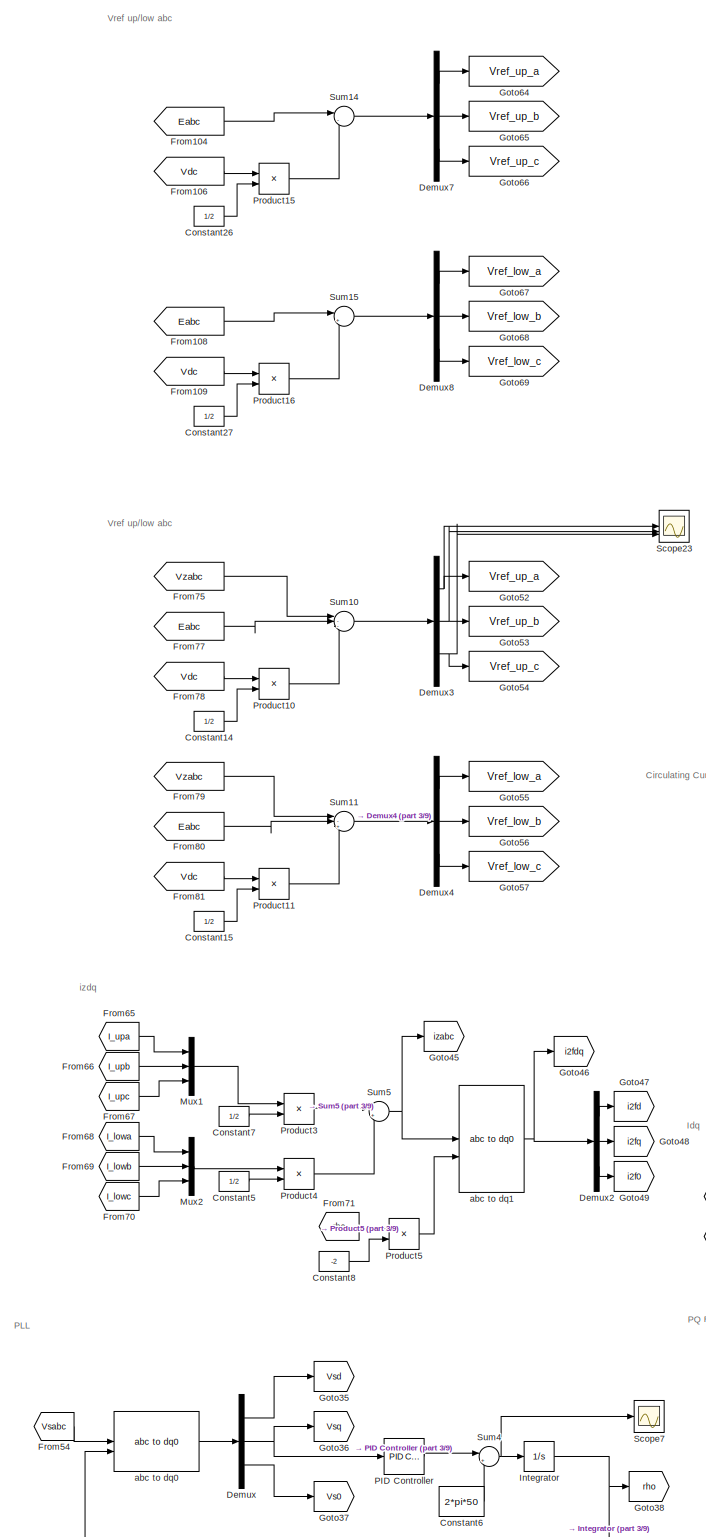
[diagram: root canvas - part 1/9, top center region]
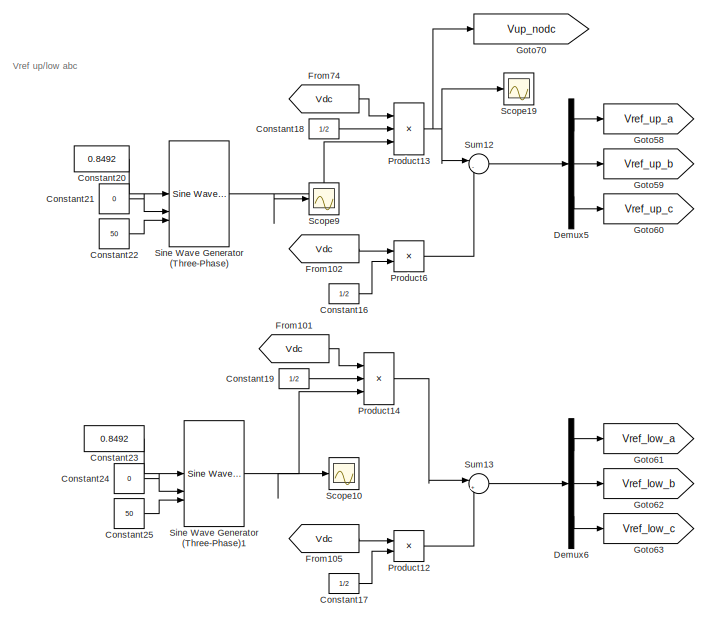
[diagram: root canvas - part 2/9, top left region]
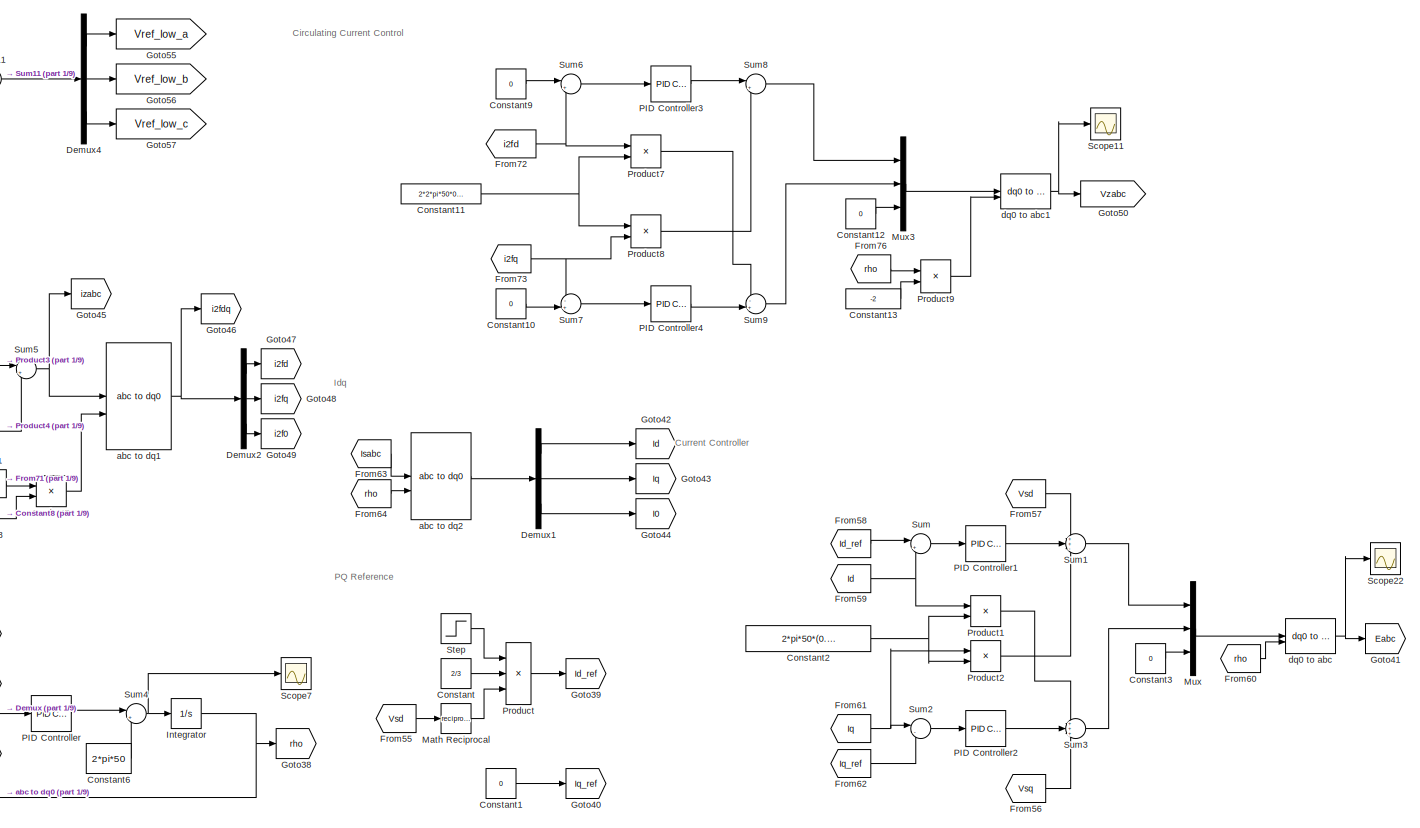
[diagram: root canvas - part 3/9, middle right region]
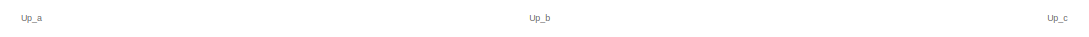
[diagram: root canvas - part 4/9, central region]
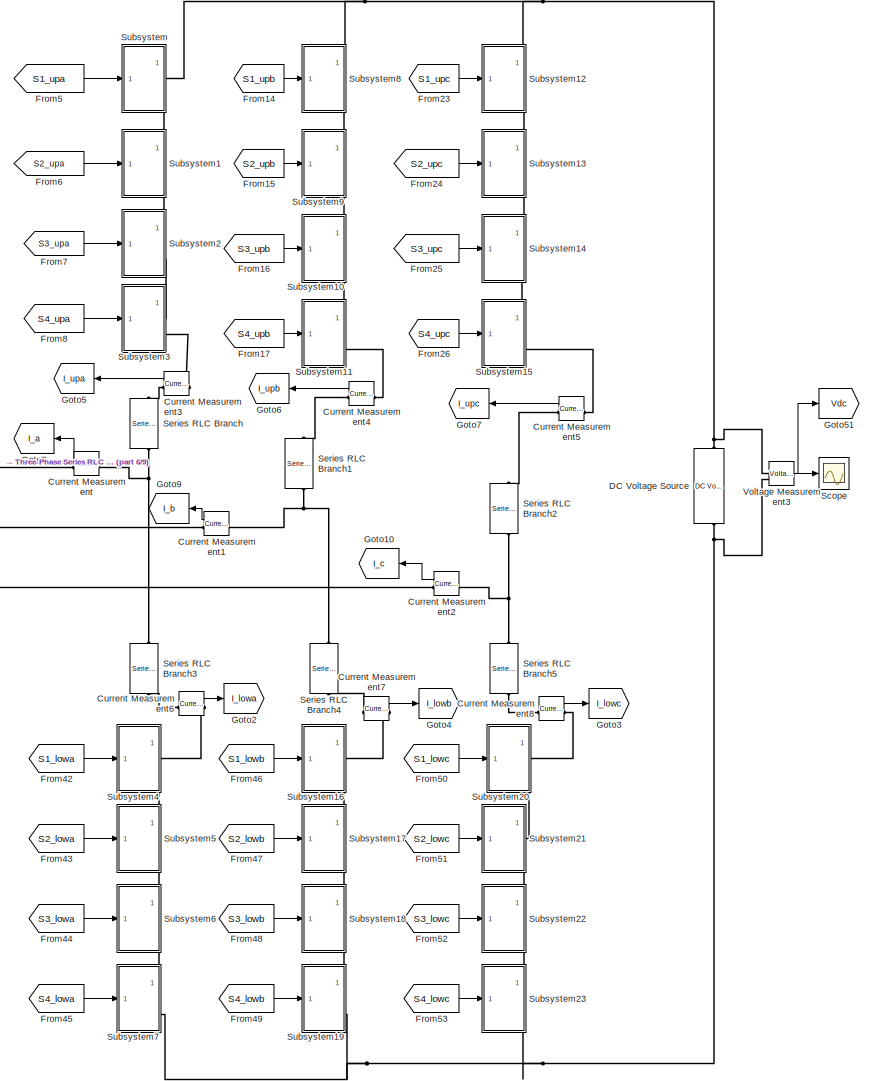
[diagram: root canvas - part 5/9, bottom left region]
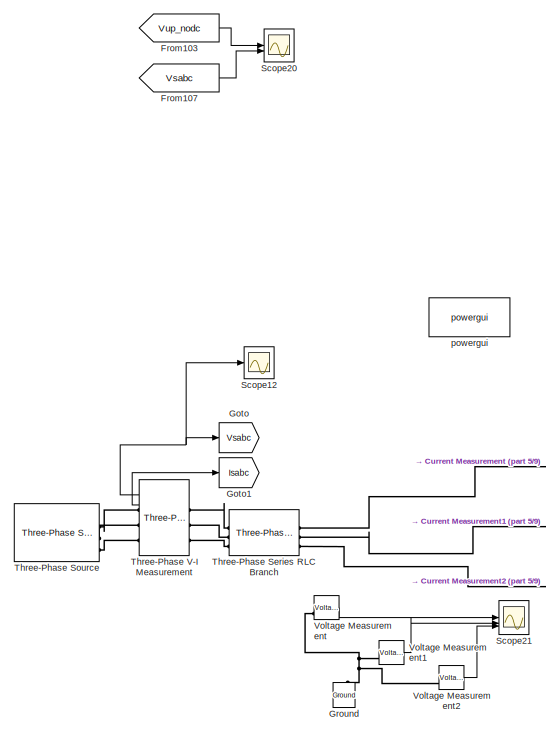
[diagram: root canvas - part 6/9, bottom left region]
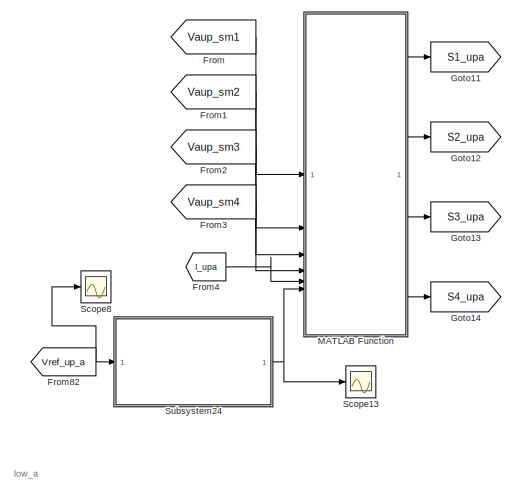
[diagram: root canvas - part 7/9, bottom center region]
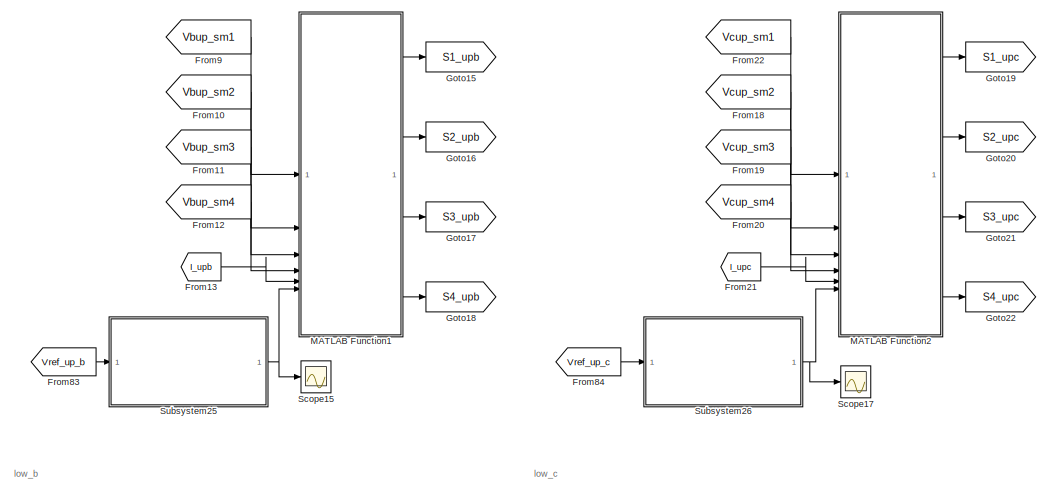
[diagram: root canvas - part 8/9, bottom right region]
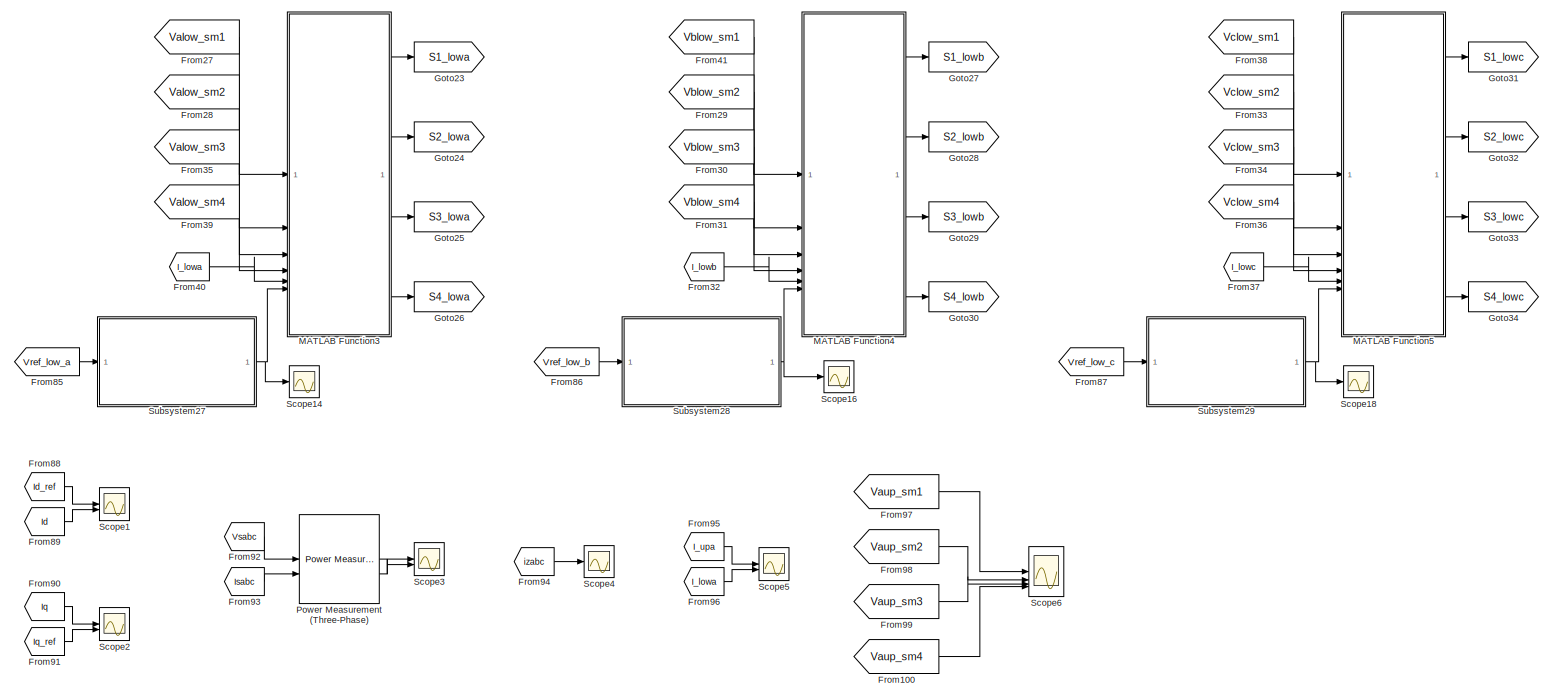
[diagram: root canvas - part 9/9, bottom right region]
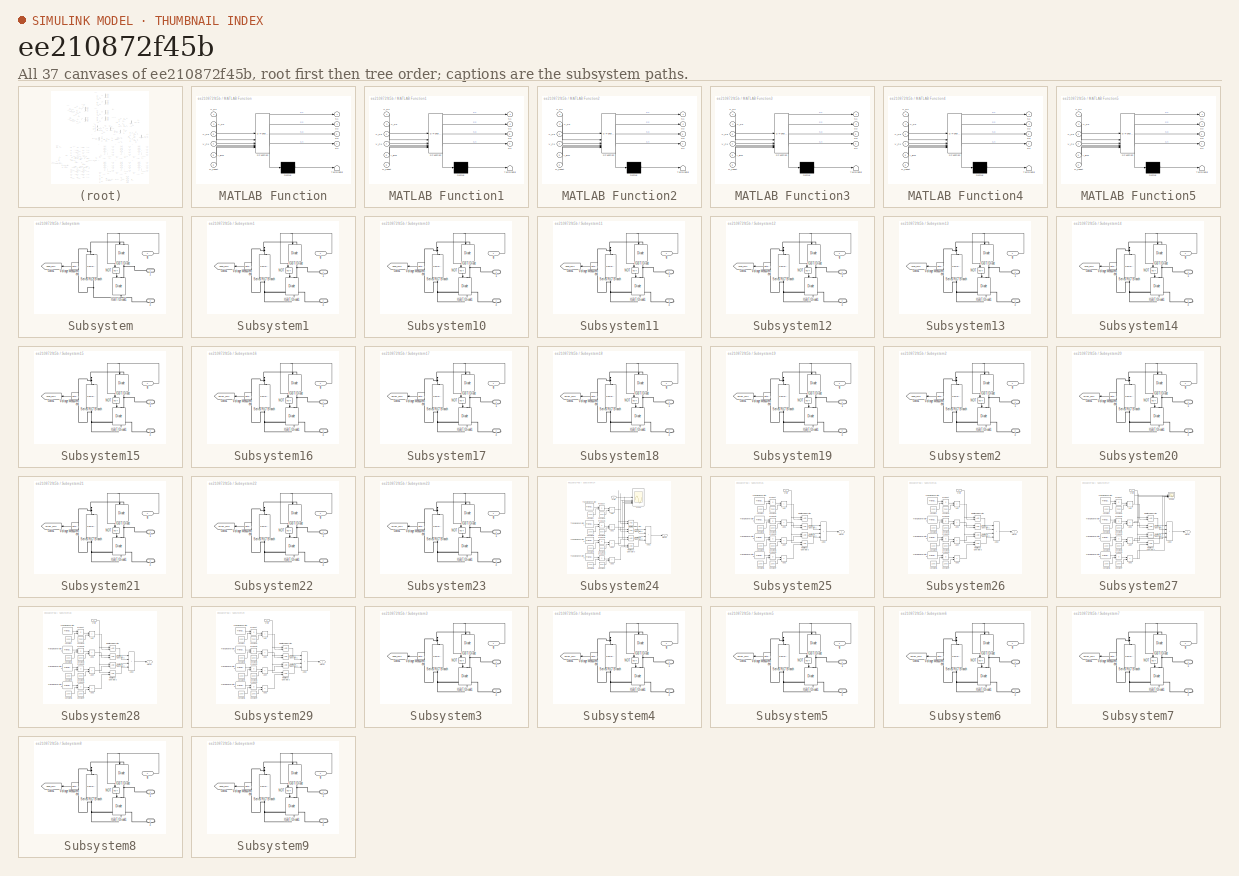
[diagram: thumbnail index - all 37 canvases of the model, root first then tree order]
MODEL slx_ee210872f45b
KIND model
CONFIG AbsTol = auto
CONFIG EnableMultiTasking = off
CONFIG FixedStep = auto
CONFIG MaxStep = 1e-5
CONFIG MinStep = auto
CONFIG RelTol = 1e-3
CONFIG SampleTimeConstraint = Unconstrained
CONFIG SolverName = VariableStepAuto
CONFIG StartTime = 0.0
CONFIG StopTime = 0.35
BLOCK [Constant] Constant
  Value = 2/3
BLOCK [Constant] Constant1
  Value = 0
BLOCK [Constant] Constant10
  Value = 0
BLOCK [Constant] Constant11
  Value = 2*2*pi*50*0.003
BLOCK [Constant] Constant12
  Value = 0
BLOCK [Constant] Constant13
  Value = -2
BLOCK [Constant] Constant14
  Value = 1/2
BLOCK [Constant] Constant15
  Value = 1/2
BLOCK [Constant] Constant16
  Commented = on
  Value = 1/2
BLOCK [Constant] Constant17
  Commented = on
  Value = 1/2
BLOCK [Constant] Constant18
  Commented = on
  Value = 1/2
BLOCK [Constant] Constant19
  Commented = on
  Value = 1/2
BLOCK [Constant] Constant2
  Value = 2*pi*50*(0.0083+Larm/2)
BLOCK [Constant] Constant20
  Commented = on
  Value = 0.8492
BLOCK [Constant] Constant21
  Commented = on
  Value = 0
BLOCK [Constant] Constant22
  Commented = on
  Value = 50
BLOCK [Constant] Constant23
  Commented = on
  Value = 0.8492
BLOCK [Constant] Constant24
  Commented = on
  Value = 0
BLOCK [Constant] Constant25
  Commented = on
  Value = 50
BLOCK [Constant] Constant26
  Commented = on
  Value = 1/2
BLOCK [Constant] Constant27
  Commented = on
  Value = 1/2
BLOCK [Constant] Constant3
  Value = 0
BLOCK [Constant] Constant5
  Value = 1/2
BLOCK [Constant] Constant6
  Value = 2*pi*50
BLOCK [Constant] Constant7
  Value = 1/2
BLOCK [Constant] Constant8
  Value = -2
BLOCK [Constant] Constant9
  Value = 0
BLOCK [Reference] Current Measurement  REF=spsCurrentMeasurementLib/Current Measurement
  LibrarySourceBlock = sps_lib/Sensors and Measurements/Current Measurement
  SourceBlock = spsCurrentMeasurementLib/Current Measurement
  SourceType = Current Measurement
  UserDataPersistent = on
BLOCK [Reference] Current Measurement1  REF=spsCurrentMeasurementLib/Current Measurement
  LibrarySourceBlock = sps_lib/Sensors and Measurements/Current Measurement
  SourceBlock = spsCurrentMeasurementLib/Current Measurement
  SourceType = Current Measurement
  UserDataPersistent = on
BLOCK [Reference] Current Measurement2  REF=spsCurrentMeasurementLib/Current Measurement
  LibrarySourceBlock = sps_lib/Sensors and Measurements/Current Measurement
  SourceBlock = spsCurrentMeasurementLib/Current Measurement
  SourceType = Current Measurement
  UserDataPersistent = on
BLOCK [Reference] Current Measurement3  REF=spsCurrentMeasurementLib/Current Measurement
  LibrarySourceBlock = sps_lib/Sensors and Measurements/Current Measurement
  SourceBlock = spsCurrentMeasurementLib/Current Measurement
  SourceType = Current Measurement
  UserDataPersistent = on
BLOCK [Reference] Current Measurement4  REF=spsCurrentMeasurementLib/Current Measurement
  LibrarySourceBlock = sps_lib/Sensors and Measurements/Current Measurement
  SourceBlock = spsCurrentMeasurementLib/Current Measurement
  SourceType = Current Measurement
  UserDataPersistent = on
BLOCK [Reference] Current Measurement5  REF=spsCurrentMeasurementLib/Current Measurement
  LibrarySourceBlock = sps_lib/Sensors and Measurements/Current Measurement
  SourceBlock = spsCurrentMeasurementLib/Current Measurement
  SourceType = Current Measurement
  UserDataPersistent = on
BLOCK [Reference] Current Measurement6  REF=spsCurrentMeasurementLib/Current Measurement
  LibrarySourceBlock = sps_lib/Sensors and Measurements/Current Measurement
  SourceBlock = spsCurrentMeasurementLib/Current Measurement
  SourceType = Current Measurement
  UserDataPersistent = on
BLOCK [Reference] Current Measurement7  REF=spsCurrentMeasurementLib/Current Measurement
  LibrarySourceBlock = sps_lib/Sensors and Measurements/Current Measurement
  SourceBlock = spsCurrentMeasurementLib/Current Measurement
  SourceType = Current Measurement
  UserDataPersistent = on
BLOCK [Reference] Current Measurement8  REF=spsCurrentMeasurementLib/Current Measurement
  LibrarySourceBlock = sps_lib/Sensors and Measurements/Current Measurement
  SourceBlock = spsCurrentMeasurementLib/Current Measurement
  SourceType = Current Measurement
  UserDataPersistent = on
BLOCK [Reference] DC Voltage Source  REF=spsDCVoltageSourceLib/DC Voltage Source
  LibrarySourceBlock = sps_lib/Sources/DC Voltage Source
  SourceBlock = spsDCVoltageSourceLib/DC Voltage Source
  SourceType = DC Voltage Source
BLOCK [Demux] Demux
  Outputs = 3
BLOCK [Demux] Demux1
  Outputs = 3
BLOCK [Demux] Demux2
  Outputs = 3
BLOCK [Demux] Demux3
  Outputs = 3
BLOCK [Demux] Demux4
  Outputs = 3
BLOCK [Demux] Demux5
  Commented = on
  Outputs = 3
BLOCK [Demux] Demux6
  Commented = on
  Outputs = 3
BLOCK [Demux] Demux7
  Commented = on
  Outputs = 3
BLOCK [Demux] Demux8
  Commented = on
  Outputs = 3
BLOCK [From] From
  GotoTag = Vaup_sm1
  TagVisibility = global
BLOCK [From] From1
  GotoTag = Vaup_sm2
  TagVisibility = global
BLOCK [From] From10
  GotoTag = Vbup_sm2
  TagVisibility = global
BLOCK [From] From100
  GotoTag = Vaup_sm4
  TagVisibility = global
BLOCK [From] From101
  Commented = on
  GotoTag = Vdc
BLOCK [From] From102
  Commented = on
  GotoTag = Vdc
BLOCK [From] From103
  GotoTag = Vup_nodc
BLOCK [From] From104
  Commented = on
  GotoTag = Eabc
BLOCK [From] From105
  Commented = on
  GotoTag = Vdc
BLOCK [From] From106
  Commented = on
  GotoTag = Vdc
BLOCK [From] From107
  GotoTag = Vsabc
BLOCK [From] From108
  Commented = on
  GotoTag = Eabc
BLOCK [From] From109
  Commented = on
  GotoTag = Vdc
BLOCK [From] From11
  GotoTag = Vbup_sm3
  TagVisibility = global
BLOCK [From] From12
  GotoTag = Vbup_sm4
  TagVisibility = global
BLOCK [From] From13
  GotoTag = I_upb
BLOCK [From] From14
  GotoTag = S1_upb
BLOCK [From] From15
  GotoTag = S2_upb
BLOCK [From] From16
  GotoTag = S3_upb
BLOCK [From] From17
  GotoTag = S4_upb
BLOCK [From] From18
  GotoTag = Vcup_sm2
  TagVisibility = global
BLOCK [From] From19
  GotoTag = Vcup_sm3
  TagVisibility = global
BLOCK [From] From2
  GotoTag = Vaup_sm3
  TagVisibility = global
BLOCK [From] From20
  GotoTag = Vcup_sm4
  TagVisibility = global
BLOCK [From] From21
  GotoTag = I_upc
BLOCK [From] From22
  GotoTag = Vcup_sm1
  TagVisibility = global
BLOCK [From] From23
  GotoTag = S1_upc
BLOCK [From] From24
  GotoTag = S2_upc
BLOCK [From] From25
  GotoTag = S3_upc
BLOCK [From] From26
  GotoTag = S4_upc
BLOCK [From] From27
  GotoTag = Valow_sm1
  TagVisibility = global
BLOCK [From] From28
  GotoTag = Valow_sm2
  TagVisibility = global
BLOCK [From] From29
  GotoTag = Vblow_sm2
  TagVisibility = global
BLOCK [From] From3
  GotoTag = Vaup_sm4
  TagVisibility = global
BLOCK [From] From30
  GotoTag = Vblow_sm3
  TagVisibility = global
BLOCK [From] From31
  GotoTag = Vblow_sm4
  TagVisibility = global
BLOCK [From] From32
  GotoTag = I_lowb
BLOCK [From] From33
  GotoTag = Vclow_sm2
  TagVisibility = global
BLOCK [From] From34
  GotoTag = Vclow_sm3
  TagVisibility = global
BLOCK [From] From35
  GotoTag = Valow_sm3
  TagVisibility = global
BLOCK [From] From36
  GotoTag = Vclow_sm4
  TagVisibility = global
BLOCK [From] From37
  GotoTag = I_lowc
BLOCK [From] From38
  GotoTag = Vclow_sm1
  TagVisibility = global
BLOCK [From] From39
  GotoTag = Valow_sm4
  TagVisibility = global
BLOCK [From] From4
  GotoTag = I_upa
BLOCK [From] From40
  GotoTag = I_lowa
BLOCK [From] From41
  GotoTag = Vblow_sm1
  TagVisibility = global
BLOCK [From] From42
  GotoTag = S1_lowa
BLOCK [From] From43
  GotoTag = S2_lowa
BLOCK [From] From44
  GotoTag = S3_lowa
BLOCK [From] From45
  GotoTag = S4_lowa
BLOCK [From] From46
  GotoTag = S1_lowb
BLOCK [From] From47
  GotoTag = S2_lowb
BLOCK [From] From48
  GotoTag = S3_lowb
BLOCK [From] From49
  GotoTag = S4_lowb
BLOCK [From] From5
  GotoTag = S1_upa
BLOCK [From] From50
  GotoTag = S1_lowc
BLOCK [From] From51
  GotoTag = S2_lowc
BLOCK [From] From52
  GotoTag = S3_lowc
BLOCK [From] From53
  GotoTag = S4_lowc
BLOCK [From] From54
  GotoTag = Vsabc
BLOCK [From] From55
  GotoTag = Vsd
BLOCK [From] From56
  GotoTag = Vsq
BLOCK [From] From57
  GotoTag = Vsd
BLOCK [From] From58
  GotoTag = Id_ref
BLOCK [From] From59
  GotoTag = Id
BLOCK [From] From6
  GotoTag = S2_upa
BLOCK [From] From60
  GotoTag = rho
BLOCK [From] From61
  GotoTag = Iq
BLOCK [From] From62
  GotoTag = Iq_ref
BLOCK [From] From63
  GotoTag = Isabc
BLOCK [From] From64
  GotoTag = rho
BLOCK [From] From65
  GotoTag = I_upa
BLOCK [From] From66
  GotoTag = I_upb
BLOCK [From] From67
  GotoTag = I_upc
BLOCK [From] From68
  GotoTag = I_lowa
BLOCK [From] From69
  GotoTag = I_lowb
BLOCK [From] From7
  GotoTag = S3_upa
BLOCK [From] From70
  GotoTag = I_lowc
BLOCK [From] From71
  GotoTag = rho
BLOCK [From] From72
  GotoTag = i2fd
BLOCK [From] From73
  GotoTag = i2fq
BLOCK [From] From74
  Commented = on
  GotoTag = Vdc
BLOCK [From] From75
  GotoTag = Vzabc
BLOCK [From] From76
  GotoTag = rho
BLOCK [From] From77
  GotoTag = Eabc
BLOCK [From] From78
  GotoTag = Vdc
BLOCK [From] From79
  GotoTag = Vzabc
BLOCK [From] From8
  GotoTag = S4_upa
BLOCK [From] From80
  GotoTag = Eabc
BLOCK [From] From81
  GotoTag = Vdc
BLOCK [From] From82
  GotoTag = Vref_up_a
BLOCK [From] From83
  GotoTag = Vref_up_b
BLOCK [From] From84
  GotoTag = Vref_up_c
BLOCK [From] From85
  GotoTag = Vref_low_a
BLOCK [From] From86
  GotoTag = Vref_low_b
BLOCK [From] From87
  GotoTag = Vref_low_c
BLOCK [From] From88
  GotoTag = Id_ref
BLOCK [From] From89
  GotoTag = Id
BLOCK [From] From9
  GotoTag = Vbup_sm1
  TagVisibility = global
BLOCK [From] From90
  GotoTag = Iq
BLOCK [From] From91
  GotoTag = Iq_ref
BLOCK [From] From92
  GotoTag = Vsabc
BLOCK [From] From93
  GotoTag = Isabc
BLOCK [From] From94
  GotoTag = izabc
BLOCK [From] From95
  GotoTag = I_upa
BLOCK [From] From96
  GotoTag = I_lowa
BLOCK [From] From97
  GotoTag = Vaup_sm1
  TagVisibility = global
BLOCK [From] From98
  GotoTag = Vaup_sm2
  TagVisibility = global
BLOCK [From] From99
  GotoTag = Vaup_sm3
  TagVisibility = global
BLOCK [Goto] Goto
  GotoTag = Vsabc
BLOCK [Goto] Goto1
  GotoTag = Isabc
BLOCK [Goto] Goto10
  GotoTag = I_c
BLOCK [Goto] Goto11
  GotoTag = S1_upa
BLOCK [Goto] Goto12
  GotoTag = S2_upa
BLOCK [Goto] Goto13
  GotoTag = S3_upa
BLOCK [Goto] Goto14
  GotoTag = S4_upa
BLOCK [Goto] Goto15
  GotoTag = S1_upb
BLOCK [Goto] Goto16
  GotoTag = S2_upb
BLOCK [Goto] Goto17
  GotoTag = S3_upb
BLOCK [Goto] Goto18
  GotoTag = S4_upb
BLOCK [Goto] Goto19
  GotoTag = S1_upc
BLOCK [Goto] Goto2
  GotoTag = I_lowa
BLOCK [Goto] Goto20
  GotoTag = S2_upc
BLOCK [Goto] Goto21
  GotoTag = S3_upc
BLOCK [Goto] Goto22
  GotoTag = S4_upc
BLOCK [Goto] Goto23
  GotoTag = S1_lowa
BLOCK [Goto] Goto24
  GotoTag = S2_lowa
BLOCK [Goto] Goto25
  GotoTag = S3_lowa
BLOCK [Goto] Goto26
  GotoTag = S4_lowa
BLOCK [Goto] Goto27
  GotoTag = S1_lowb
BLOCK [Goto] Goto28
  GotoTag = S2_lowb
BLOCK [Goto] Goto29
  GotoTag = S3_lowb
BLOCK [Goto] Goto3
  GotoTag = I_lowc
BLOCK [Goto] Goto30
  GotoTag = S4_lowb
BLOCK [Goto] Goto31
  GotoTag = S1_lowc
BLOCK [Goto] Goto32
  GotoTag = S2_lowc
BLOCK [Goto] Goto33
  GotoTag = S3_lowc
BLOCK [Goto] Goto34
  GotoTag = S4_lowc
BLOCK [Goto] Goto35
  GotoTag = Vsd
BLOCK [Goto] Goto36
  GotoTag = Vsq
BLOCK [Goto] Goto37
  GotoTag = Vs0
BLOCK [Goto] Goto38
  GotoTag = rho
BLOCK [Goto] Goto39
  GotoTag = Id_ref
BLOCK [Goto] Goto4
  GotoTag = I_lowb
BLOCK [Goto] Goto40
  GotoTag = Iq_ref
BLOCK [Goto] Goto41
  GotoTag = Eabc
BLOCK [Goto] Goto42
  GotoTag = Id
BLOCK [Goto] Goto43
  GotoTag = Iq
BLOCK [Goto] Goto44
  GotoTag = I0
BLOCK [Goto] Goto45
  GotoTag = izabc
BLOCK [Goto] Goto46
  GotoTag = i2fdq
BLOCK [Goto] Goto47
  GotoTag = i2fd
BLOCK [Goto] Goto48
  GotoTag = i2fq
BLOCK [Goto] Goto49
  GotoTag = i2f0
BLOCK [Goto] Goto5
  GotoTag = I_upa
BLOCK [Goto] Goto50
  GotoTag = Vzabc
BLOCK [Goto] Goto51
  GotoTag = Vdc
BLOCK [Goto] Goto52
  GotoTag = Vref_up_a
BLOCK [Goto] Goto53
  GotoTag = Vref_up_b
BLOCK [Goto] Goto54
  GotoTag = Vref_up_c
BLOCK [Goto] Goto55
  GotoTag = Vref_low_a
BLOCK [Goto] Goto56
  GotoTag = Vref_low_b
BLOCK [Goto] Goto57
  GotoTag = Vref_low_c
BLOCK [Goto] Goto58
  Commented = on
  GotoTag = Vref_up_a
BLOCK [Goto] Goto59
  Commented = on
  GotoTag = Vref_up_b
BLOCK [Goto] Goto6
  GotoTag = I_upb
BLOCK [Goto] Goto60
  Commented = on
  GotoTag = Vref_up_c
BLOCK [Goto] Goto61
  Commented = on
  GotoTag = Vref_low_a
BLOCK [Goto] Goto62
  Commented = on
  GotoTag = Vref_low_b
BLOCK [Goto] Goto63
  Commented = on
  GotoTag = Vref_low_c
BLOCK [Goto] Goto64
  Commented = on
  GotoTag = Vref_up_a
BLOCK [Goto] Goto65
  Commented = on
  GotoTag = Vref_up_b
BLOCK [Goto] Goto66
  Commented = on
  GotoTag = Vref_up_c
BLOCK [Goto] Goto67
  Commented = on
  GotoTag = Vref_low_a
BLOCK [Goto] Goto68
  Commented = on
  GotoTag = Vref_low_b
BLOCK [Goto] Goto69
  Commented = on
  GotoTag = Vref_low_c
BLOCK [Goto] Goto7
  GotoTag = I_upc
BLOCK [Goto] Goto70
  Commented = on
  GotoTag = Vup_nodc
BLOCK [Goto] Goto8
  GotoTag = I_a
BLOCK [Goto] Goto9
  GotoTag = I_b
BLOCK [Reference] Ground  REF=spsGroundLib/Ground
  LibrarySourceBlock = sps_lib/Utilities/Ground
  NameLocation = right
  SourceBlock = spsGroundLib/Ground
  SourceType = Ground
BLOCK [Integrator] Integrator
  WrapState = on
  WrappedStateLowerValue = 0
  WrappedStateUpperValue = 2*pi
BLOCK [SubSystem] MATLAB Function
  ErrorFcn = Stateflow.Translate.translate
  PermitHierarchicalResolution = ExplicitOnly
  SFBlockType = MATLAB Function
  TreatAsAtomicUnit = on
BLOCK [Demux] MATLAB Function/ Demux 
  Outputs = 1
BLOCK [S-Function] MATLAB Function/ SFunction 
  EnableBusSupport = on
  FunctionName = sf_sfun
  PortCounts = [6 5]
  SFcnIsStateOwnerBlock = off
  SFunctionDeploymentMode = off
  Tag = Stateflow S-Function 1
BLOCK [Terminator] MATLAB Function/ Terminator 
BLOCK [Inport] MATLAB Function/N_insert
  Port = 6
BLOCK [Outport] MATLAB Function/S1
BLOCK [Outport] MATLAB Function/S2
  Port = 2
BLOCK [Outport] MATLAB Function/S3
  Port = 3
BLOCK [Outport] MATLAB Function/S4
  Port = 4
BLOCK [Inport] MATLAB Function/V_C1
BLOCK [Inport] MATLAB Function/V_C2
  Port = 2
BLOCK [Inport] MATLAB Function/V_C3
  Port = 3
BLOCK [Inport] MATLAB Function/V_C4
  Port = 4
BLOCK [Inport] MATLAB Function/i_arm
  Port = 5
BLOCK [SubSystem] MATLAB Function1
  ErrorFcn = Stateflow.Translate.translate
  PermitHierarchicalResolution = ExplicitOnly
  SFBlockType = MATLAB Function
  TreatAsAtomicUnit = on
BLOCK [Demux] MATLAB Function1/ Demux 
  Outputs = 1
BLOCK [S-Function] MATLAB Function1/ SFunction 
  EnableBusSupport = on
  FunctionName = sf_sfun
  PortCounts = [6 5]
  SFcnIsStateOwnerBlock = off
  SFunctionDeploymentMode = off
  Tag = Stateflow S-Function 2
BLOCK [Terminator] MATLAB Function1/ Terminator 
BLOCK [Inport] MATLAB Function1/N_insert
  Port = 6
BLOCK [Outport] MATLAB Function1/S1
BLOCK [Outport] MATLAB Function1/S2
  Port = 2
BLOCK [Outport] MATLAB Function1/S3
  Port = 3
BLOCK [Outport] MATLAB Function1/S4
  Port = 4
BLOCK [Inport] MATLAB Function1/V_C1
BLOCK [Inport] MATLAB Function1/V_C2
  Port = 2
BLOCK [Inport] MATLAB Function1/V_C3
  Port = 3
BLOCK [Inport] MATLAB Function1/V_C4
  Port = 4
BLOCK [Inport] MATLAB Function1/i_arm
  Port = 5
BLOCK [SubSystem] MATLAB Function2
  ErrorFcn = Stateflow.Translate.translate
  PermitHierarchicalResolution = ExplicitOnly
  SFBlockType = MATLAB Function
  TreatAsAtomicUnit = on
BLOCK [Demux] MATLAB Function2/ Demux 
  Outputs = 1
BLOCK [S-Function] MATLAB Function2/ SFunction 
  EnableBusSupport = on
  FunctionName = sf_sfun
  PortCounts = [6 5]
  SFcnIsStateOwnerBlock = off
  SFunctionDeploymentMode = off
  Tag = Stateflow S-Function 3
BLOCK [Terminator] MATLAB Function2/ Terminator 
BLOCK [Inport] MATLAB Function2/N_insert
  Port = 6
BLOCK [Outport] MATLAB Function2/S1
BLOCK [Outport] MATLAB Function2/S2
  Port = 2
BLOCK [Outport] MATLAB Function2/S3
  Port = 3
BLOCK [Outport] MATLAB Function2/S4
  Port = 4
BLOCK [Inport] MATLAB Function2/V_C1
BLOCK [Inport] MATLAB Function2/V_C2
  Port = 2
BLOCK [Inport] MATLAB Function2/V_C3
  Port = 3
BLOCK [Inport] MATLAB Function2/V_C4
  Port = 4
BLOCK [Inport] MATLAB Function2/i_arm
  Port = 5
BLOCK [SubSystem] MATLAB Function3
  ErrorFcn = Stateflow.Translate.translate
  PermitHierarchicalResolution = ExplicitOnly
  SFBlockType = MATLAB Function
  TreatAsAtomicUnit = on
BLOCK [Demux] MATLAB Function3/ Demux 
  Outputs = 1
BLOCK [S-Function] MATLAB Function3/ SFunction 
  EnableBusSupport = on
  FunctionName = sf_sfun
  PortCounts = [6 5]
  SFcnIsStateOwnerBlock = off
  SFunctionDeploymentMode = off
  Tag = Stateflow S-Function 4
BLOCK [Terminator] MATLAB Function3/ Terminator 
BLOCK [Inport] MATLAB Function3/N_insert
  Port = 6
BLOCK [Outport] MATLAB Function3/S1
BLOCK [Outport] MATLAB Function3/S2
  Port = 2
BLOCK [Outport] MATLAB Function3/S3
  Port = 3
BLOCK [Outport] MATLAB Function3/S4
  Port = 4
BLOCK [Inport] MATLAB Function3/V_C1
BLOCK [Inport] MATLAB Function3/V_C2
  Port = 2
BLOCK [Inport] MATLAB Function3/V_C3
  Port = 3
BLOCK [Inport] MATLAB Function3/V_C4
  Port = 4
BLOCK [Inport] MATLAB Function3/i_arm
  Port = 5
BLOCK [SubSystem] MATLAB Function4
  ErrorFcn = Stateflow.Translate.translate
  PermitHierarchicalResolution = ExplicitOnly
  SFBlockType = MATLAB Function
  TreatAsAtomicUnit = on
BLOCK [Demux] MATLAB Function4/ Demux 
  Outputs = 1
BLOCK [S-Function] MATLAB Function4/ SFunction 
  EnableBusSupport = on
  FunctionName = sf_sfun
  PortCounts = [6 5]
  SFcnIsStateOwnerBlock = off
  SFunctionDeploymentMode = off
  Tag = Stateflow S-Function 5
BLOCK [Terminator] MATLAB Function4/ Terminator 
BLOCK [Inport] MATLAB Function4/N_insert
  Port = 6
BLOCK [Outport] MATLAB Function4/S1
BLOCK [Outport] MATLAB Function4/S2
  Port = 2
BLOCK [Outport] MATLAB Function4/S3
  Port = 3
BLOCK [Outport] MATLAB Function4/S4
  Port = 4
BLOCK [Inport] MATLAB Function4/V_C1
BLOCK [Inport] MATLAB Function4/V_C2
  Port = 2
BLOCK [Inport] MATLAB Function4/V_C3
  Port = 3
BLOCK [Inport] MATLAB Function4/V_C4
  Port = 4
BLOCK [Inport] MATLAB Function4/i_arm
  Port = 5
BLOCK [SubSystem] MATLAB Function5
  ErrorFcn = Stateflow.Translate.translate
  PermitHierarchicalResolution = ExplicitOnly
  SFBlockType = MATLAB Function
  TreatAsAtomicUnit = on
BLOCK [Demux] MATLAB Function5/ Demux 
  Outputs = 1
BLOCK [S-Function] MATLAB Function5/ SFunction 
  EnableBusSupport = on
  FunctionName = sf_sfun
  PortCounts = [6 5]
  SFcnIsStateOwnerBlock = off
  SFunctionDeploymentMode = off
  Tag = Stateflow S-Function 6
BLOCK [Terminator] MATLAB Function5/ Terminator 
BLOCK [Inport] MATLAB Function5/N_insert
  Port = 6
BLOCK [Outport] MATLAB Function5/S1
BLOCK [Outport] MATLAB Function5/S2
  Port = 2
BLOCK [Outport] MATLAB Function5/S3
  Port = 3
BLOCK [Outport] MATLAB Function5/S4
  Port = 4
BLOCK [Inport] MATLAB Function5/V_C1
BLOCK [Inport] MATLAB Function5/V_C2
  Port = 2
BLOCK [Inport] MATLAB Function5/V_C3
  Port = 3
BLOCK [Inport] MATLAB Function5/V_C4
  Port = 4
BLOCK [Inport] MATLAB Function5/i_arm
  Port = 5
BLOCK [Math] Math Reciprocal
  Operator = reciprocal
  SignedPower = on
BLOCK [Mux] Mux
  DisplayOption = bar
  Inputs = 3
BLOCK [Mux] Mux1
  DisplayOption = bar
  Inputs = 3
BLOCK [Mux] Mux2
  DisplayOption = bar
  Inputs = 3
BLOCK [Mux] Mux3
  DisplayOption = bar
  Inputs = 3
BLOCK [Reference] PID Controller  REF=slpidlib/PID Controller
  LibrarySourceBlock = simulink/Continuous/PID Controller
  SourceBlock = slpidlib/PID Controller
  SourceType = PID 1dof
BLOCK [Reference] PID Controller1  REF=slpidlib/PID Controller
  LibrarySourceBlock = simulink/Continuous/PID Controller
  SourceBlock = slpidlib/PID Controller
  SourceType = PID 1dof
BLOCK [Reference] PID Controller2  REF=slpidlib/PID Controller
  LibrarySourceBlock = simulink/Continuous/PID Controller
  SourceBlock = slpidlib/PID Controller
  SourceType = PID 1dof
BLOCK [Reference] PID Controller3  REF=slpidlib/PID Controller
  LibrarySourceBlock = simulink/Continuous/PID Controller
  SourceBlock = slpidlib/PID Controller
  SourceType = PID 1dof
BLOCK [Reference] PID Controller4  REF=slpidlib/PID Controller
  LibrarySourceBlock = simulink/Continuous/PID Controller
  SourceBlock = slpidlib/PID Controller
  SourceType = PID 1dof
BLOCK [Reference] Power Measurement (Three-Phase)  REF=eePowerMeasurement/Power Measurement
(Three-Phase)
  LibrarySourceBlock = ee_sl_lib/Measurements/Power Measurement\n(Three-Phase)
  SourceBlock = eePowerMeasurement/Power Measurement\n(Three-Phase)
  SourceType = Power Measurement (Three-Phase)
BLOCK [Product] Product
  Inputs = 3
BLOCK [Product] Product1
BLOCK [Product] Product10
BLOCK [Product] Product11
BLOCK [Product] Product12
  Commented = on
BLOCK [Product] Product13
  Commented = on
  Inputs = 3
BLOCK [Product] Product14
  Commented = on
  Inputs = 3
BLOCK [Product] Product15
  Commented = on
BLOCK [Product] Product16
  Commented = on
BLOCK [Product] Product2
BLOCK [Product] Product3
BLOCK [Product] Product4
BLOCK [Product] Product5
BLOCK [Product] Product6
  Commented = on
BLOCK [Product] Product7
BLOCK [Product] Product8
BLOCK [Product] Product9
BLOCK [Scope] Scope
  Floating = off
  NumInputPorts = 1
  ScopeSpecificationString = Simulink.scopes.TimeScopeBlockCfg('CurrentConfiguration', extmgr.ConfigurationSet(extmgr.Configuration('Core','General UI',true),extmgr.Configuration('Core','Source UI',true),extmgr.Configuration('Sources','WiredSimulink',true),extmgr.Configuration('Visuals','Time Domain',true,'SerializedDisplays',{struct('MinYLimReal','7000.00000','MaxYLimReal','9000.00000','YLabelReal','','MinYLimMag','7000.0000...<+1451ch>
BLOCK [Scope] Scope1
  Floating = off
  NumInputPorts = 2
  ScopeSpecificationString = Simulink.scopes.TimeScopeBlockCfg('CurrentConfiguration', extmgr.ConfigurationSet(extmgr.Configuration('Core','General UI',true),extmgr.Configuration('Core','Source UI',true),extmgr.Configuration('Sources','WiredSimulink',true,'DataLoggingVariableName','ScopeData1'),extmgr.Configuration('Visuals','Time Domain',true,'SerializedDisplays',{struct('MinYLimReal','-32.33547','MaxYLimReal','235.29011','Y...<+1598ch>
BLOCK [Scope] Scope10
  Commented = on
  Floating = off
  NumInputPorts = 1
  ScopeSpecificationString = Simulink.scopes.TimeScopeBlockCfg('CurrentConfiguration', extmgr.ConfigurationSet(extmgr.Configuration('Core','General UI',true),extmgr.Configuration('Core','Source UI',true),extmgr.Configuration('Sources','WiredSimulink',true,'DataLoggingVariableName','ScopeData2'),extmgr.Configuration('Visuals','Time Domain',true),extmgr.Configuration('Tools','Plot Navigation',true),extmgr.Configuration('Tools',...<+40ch>
BLOCK [Scope] Scope11
  Floating = off
  NumInputPorts = 1
  ScopeSpecificationString = Simulink.scopes.TimeScopeBlockCfg('CurrentConfiguration', extmgr.ConfigurationSet(extmgr.Configuration('Core','General UI',true),extmgr.Configuration('Core','Source UI',true),extmgr.Configuration('Sources','WiredSimulink',true,'DataLoggingVariableName','ScopeData3'),extmgr.Configuration('Visuals','Time Domain',true,'SerializedDisplays',{struct('MinYLimReal','-188.18649','MaxYLimReal','148.83417','...<+1551ch>
BLOCK [Scope] Scope12
  Floating = off
  NumInputPorts = 1
  ScopeSpecificationString = Simulink.scopes.TimeScopeBlockCfg('CurrentConfiguration', extmgr.ConfigurationSet(extmgr.Configuration('Core','General UI',true),extmgr.Configuration('Core','Source UI',true),extmgr.Configuration('Sources','WiredSimulink',true,'DataLoggingVariableName','ScopeData4'),extmgr.Configuration('Visuals','Time Domain',true,'SerializedDisplays',{struct('MinYLimReal','-4217.36942','MaxYLimReal','3733.34559'...<+1603ch>
BLOCK [Scope] Scope13
  Floating = off
  NumInputPorts = 1
  ScopeSpecificationString = Simulink.scopes.TimeScopeBlockCfg('CurrentConfiguration', extmgr.ConfigurationSet(extmgr.Configuration('Core','General UI',true),extmgr.Configuration('Core','Source UI',true),extmgr.Configuration('Sources','WiredSimulink',true,'DataLoggingVariableName','ScopeData1'),extmgr.Configuration('Visuals','Time Domain',true,'SerializedDisplays',{struct('MinYLimReal','-0.5','MaxYLimReal','4.5','YLabelReal',...<+1464ch>
BLOCK [Scope] Scope14
  Floating = off
  NumInputPorts = 1
  ScopeSpecificationString = Simulink.scopes.TimeScopeBlockCfg('CurrentConfiguration', extmgr.ConfigurationSet(extmgr.Configuration('Core','General UI',true),extmgr.Configuration('Core','Source UI',true),extmgr.Configuration('Sources','WiredSimulink',true,'DataLoggingVariableName','ScopeData2'),extmgr.Configuration('Visuals','Time Domain',true,'SerializedDisplays',{struct('MinYLimReal','-0.5','MaxYLimReal','4.5','YLabelReal',...<+1435ch>
BLOCK [Scope] Scope15
  Floating = off
  NumInputPorts = 1
  ScopeSpecificationString = Simulink.scopes.TimeScopeBlockCfg('CurrentConfiguration', extmgr.ConfigurationSet(extmgr.Configuration('Core','General UI',true),extmgr.Configuration('Core','Source UI',true),extmgr.Configuration('Sources','WiredSimulink',true,'DataLoggingVariableName','ScopeData3'),extmgr.Configuration('Visuals','Time Domain',true,'SerializedDisplays',{struct('MinYLimReal','-0.5','MaxYLimReal','4.5','YLabelReal',...<+1464ch>
BLOCK [Scope] Scope16
  Floating = off
  NumInputPorts = 1
  ScopeSpecificationString = Simulink.scopes.TimeScopeBlockCfg('CurrentConfiguration', extmgr.ConfigurationSet(extmgr.Configuration('Core','General UI',true),extmgr.Configuration('Core','Source UI',true),extmgr.Configuration('Sources','WiredSimulink',true,'DataLoggingVariableName','ScopeData4'),extmgr.Configuration('Visuals','Time Domain',true),extmgr.Configuration('Tools','Plot Navigation',true),extmgr.Configuration('Tools',...<+40ch>
BLOCK [Scope] Scope17
  Floating = off
  NumInputPorts = 1
  ScopeSpecificationString = Simulink.scopes.TimeScopeBlockCfg('CurrentConfiguration', extmgr.ConfigurationSet(extmgr.Configuration('Core','General UI',true),extmgr.Configuration('Core','Source UI',true),extmgr.Configuration('Sources','WiredSimulink',true,'DataLoggingVariableName','ScopeData5'),extmgr.Configuration('Visuals','Time Domain',true),extmgr.Configuration('Tools','Plot Navigation',true),extmgr.Configuration('Tools',...<+40ch>
BLOCK [Scope] Scope18
  Floating = off
  NumInputPorts = 1
  ScopeSpecificationString = Simulink.scopes.TimeScopeBlockCfg('CurrentConfiguration', extmgr.ConfigurationSet(extmgr.Configuration('Core','General UI',true),extmgr.Configuration('Core','Source UI',true),extmgr.Configuration('Sources','WiredSimulink',true,'DataLoggingVariableName','ScopeData6'),extmgr.Configuration('Visuals','Time Domain',true),extmgr.Configuration('Tools','Plot Navigation',true),extmgr.Configuration('Tools',...<+40ch>
BLOCK [Scope] Scope19
  Commented = on
  Floating = off
  NumInputPorts = 1
  ScopeSpecificationString = Simulink.scopes.TimeScopeBlockCfg('CurrentConfiguration', extmgr.ConfigurationSet(extmgr.Configuration('Core','General UI',true),extmgr.Configuration('Core','Source UI',true),extmgr.Configuration('Sources','WiredSimulink',true,'DataLoggingVariableName','ScopeData2'),extmgr.Configuration('Visuals','Time Domain',true,'SerializedDisplays',{struct('MinYLimReal','-4246.00000','MaxYLimReal','4246.00000'...<+1583ch>
BLOCK [Scope] Scope2
  Floating = off
  NumInputPorts = 2
  ScopeSpecificationString = Simulink.scopes.TimeScopeBlockCfg('CurrentConfiguration', extmgr.ConfigurationSet(extmgr.Configuration('Core','General UI',true),extmgr.Configuration('Core','Source UI',true),extmgr.Configuration('Sources','WiredSimulink',true,'DataLoggingVariableName','ScopeData2'),extmgr.Configuration('Visuals','Time Domain',true,'SerializedDisplays',{struct('MinYLimReal','-11.76446','MaxYLimReal','13.96662','YL...<+1575ch>
BLOCK [Scope] Scope20
  Floating = off
  NumInputPorts = 2
  ScopeSpecificationString = Simulink.scopes.TimeScopeBlockCfg('CurrentConfiguration', extmgr.ConfigurationSet(extmgr.Configuration('Core','General UI',true),extmgr.Configuration('Core','Source UI',true),extmgr.Configuration('Sources','WiredSimulink',true,'DataLoggingVariableName','ScopeData3'),extmgr.Configuration('Visuals','Time Domain',true,'SerializedDisplays',{struct('MinYLimReal','-3746.96081','MaxYLimReal','3654.15683'...<+1590ch>
BLOCK [Scope] Scope21
  Floating = off
  NumInputPorts = 3
  ScopeSpecificationString = Simulink.scopes.TimeScopeBlockCfg('CurrentConfiguration', extmgr.ConfigurationSet(extmgr.Configuration('Core','General UI',true),extmgr.Configuration('Core','Source UI',true),extmgr.Configuration('Sources','WiredSimulink',true,'DataLoggingVariableName','ScopeData4'),extmgr.Configuration('Visuals','Time Domain',true,'SerializedDisplays',{struct('MinYLimReal','-4886.32212','MaxYLimReal','4533.21062'...<+1577ch>
BLOCK [Scope] Scope22
  Floating = off
  NumInputPorts = 1
  ScopeSpecificationString = Simulink.scopes.TimeScopeBlockCfg('CurrentConfiguration', extmgr.ConfigurationSet(extmgr.Configuration('Core','General UI',true),extmgr.Configuration('Core','Source UI',true),extmgr.Configuration('Sources','WiredSimulink',true,'DataLoggingVariableName','ScopeData1'),extmgr.Configuration('Visuals','Time Domain',true,'SerializedDisplays',{struct('MinYLimReal','-4388.23137','MaxYLimReal','4401.87414'...<+1556ch>
BLOCK [Scope] Scope23
  Floating = off
  NumInputPorts = 3
  ScopeSpecificationString = Simulink.scopes.TimeScopeBlockCfg('CurrentConfiguration', extmgr.ConfigurationSet(extmgr.Configuration('Core','General UI',true),extmgr.Configuration('Core','Source UI',true),extmgr.Configuration('Sources','WiredSimulink',true,'DataLoggingVariableName','ScopeData2'),extmgr.Configuration('Visuals','Time Domain',true,'SerializedDisplays',{struct('MinYLimReal','-119.21241','MaxYLimReal','8101.30619',...<+1674ch>
BLOCK [Scope] Scope3
  Floating = off
  NumInputPorts = 2
  ScopeSpecificationString = Simulink.scopes.TimeScopeBlockCfg('CurrentConfiguration', extmgr.ConfigurationSet(extmgr.Configuration('Core','General UI',true),extmgr.Configuration('Core','Source UI',true),extmgr.Configuration('Sources','WiredSimulink',true,'DataLoggingVariableName','ScopeData3'),extmgr.Configuration('Visuals','Time Domain',true,'SerializedDisplays',{struct('MinYLimReal','-146363.43989','MaxYLimReal','1131378.4...<+1644ch>
BLOCK [Scope] Scope4
  Floating = off
  NumInputPorts = 1
  ScopeSpecificationString = Simulink.scopes.TimeScopeBlockCfg('CurrentConfiguration', extmgr.ConfigurationSet(extmgr.Configuration('Core','General UI',true),extmgr.Configuration('Core','Source UI',true),extmgr.Configuration('Sources','WiredSimulink',true,'DataLoggingVariableName','ScopeData4'),extmgr.Configuration('Visuals','Time Domain',true,'SerializedDisplays',{struct('MinYLimReal','-78.72243','MaxYLimReal','145.97932','Y...<+1635ch>
BLOCK [Scope] Scope5
  Floating = off
  NumInputPorts = 2
  ScopeSpecificationString = Simulink.scopes.TimeScopeBlockCfg('CurrentConfiguration', extmgr.ConfigurationSet(extmgr.Configuration('Core','General UI',true),extmgr.Configuration('Core','Source UI',true),extmgr.Configuration('Sources','WiredSimulink',true,'DataLoggingVariableName','ScopeData5'),extmgr.Configuration('Visuals','Time Domain',true,'SerializedDisplays',{struct('MinYLimReal','-156.08435','MaxYLimReal','249.85101','...<+1579ch>
BLOCK [Scope] Scope6
  Floating = off
  NumInputPorts = 4
  ScopeSpecificationString = Simulink.scopes.TimeScopeBlockCfg('CurrentConfiguration', extmgr.ConfigurationSet(extmgr.Configuration('Core','General UI',true),extmgr.Configuration('Core','Source UI',true),extmgr.Configuration('Sources','WiredSimulink',true,'DataLoggingVariableName','ScopeData6'),extmgr.Configuration('Visuals','Time Domain',true,'SerializedDisplays',{struct('MinYLimReal','1953.61503','MaxYLimReal','2069.15989',...<+1716ch>
BLOCK [Scope] Scope7
  Floating = off
  NumInputPorts = 1
  ScopeSpecificationString = Simulink.scopes.TimeScopeBlockCfg('CurrentConfiguration', extmgr.ConfigurationSet(extmgr.Configuration('Core','General UI',true),extmgr.Configuration('Core','Source UI',true),extmgr.Configuration('Sources','WiredSimulink',true,'DataLoggingVariableName','ScopeData1'),extmgr.Configuration('Visuals','Time Domain',true,'SerializedDisplays',{struct('MinYLimReal','314.15926535873','MaxYLimReal','314.159...<+1568ch>
BLOCK [Scope] Scope8
  Floating = off
  NumInputPorts = 1
  ScopeSpecificationString = Simulink.scopes.TimeScopeBlockCfg('CurrentConfiguration', extmgr.ConfigurationSet(extmgr.Configuration('Core','General UI',true),extmgr.Configuration('Core','Source UI',true),extmgr.Configuration('Sources','WiredSimulink',true,'DataLoggingVariableName','ScopeData8'),extmgr.Configuration('Visuals','Time Domain',true,'SerializedDisplays',{struct('MinYLimReal','-538.47988','MaxYLimReal','8446.92938',...<+1474ch>
BLOCK [Scope] Scope9
  Commented = on
  Floating = off
  NumInputPorts = 1
  ScopeSpecificationString = Simulink.scopes.TimeScopeBlockCfg('CurrentConfiguration', extmgr.ConfigurationSet(extmgr.Configuration('Core','General UI',true),extmgr.Configuration('Core','Source UI',true),extmgr.Configuration('Sources','WiredSimulink',true,'DataLoggingVariableName','ScopeData1'),extmgr.Configuration('Visuals','Time Domain',true,'SerializedDisplays',{struct('MinYLimReal','-0.95419','MaxYLimReal','1.018','YLabel...<+1576ch>
BLOCK [Reference] Series RLC Branch  REF=spsSeriesRLCBranchLib/Series RLC Branch
  LibrarySourceBlock = sps_lib/Passives/Series RLC Branch
  NameLocation = left
  SourceBlock = spsSeriesRLCBranchLib/Series RLC Branch
  SourceType = Series RLC Branch
BLOCK [Reference] Series RLC Branch1  REF=spsSeriesRLCBranchLib/Series RLC Branch
  LibrarySourceBlock = sps_lib/Passives/Series RLC Branch
  NameLocation = left
  SourceBlock = spsSeriesRLCBranchLib/Series RLC Branch
  SourceType = Series RLC Branch
BLOCK [Reference] Series RLC Branch2  REF=spsSeriesRLCBranchLib/Series RLC Branch
  LibrarySourceBlock = sps_lib/Passives/Series RLC Branch
  NameLocation = left
  SourceBlock = spsSeriesRLCBranchLib/Series RLC Branch
  SourceType = Series RLC Branch
BLOCK [Reference] Series RLC Branch3  REF=spsSeriesRLCBranchLib/Series RLC Branch
  LibrarySourceBlock = sps_lib/Passives/Series RLC Branch
  NameLocation = left
  SourceBlock = spsSeriesRLCBranchLib/Series RLC Branch
  SourceType = Series RLC Branch
BLOCK [Reference] Series RLC Branch4  REF=spsSeriesRLCBranchLib/Series RLC Branch
  LibrarySourceBlock = sps_lib/Passives/Series RLC Branch
  NameLocation = left
  SourceBlock = spsSeriesRLCBranchLib/Series RLC Branch
  SourceType = Series RLC Branch
BLOCK [Reference] Series RLC Branch5  REF=spsSeriesRLCBranchLib/Series RLC Branch
  LibrarySourceBlock = sps_lib/Passives/Series RLC Branch
  NameLocation = left
  SourceBlock = spsSeriesRLCBranchLib/Series RLC Branch
  SourceType = Series RLC Branch
BLOCK [Reference] Sine Wave Generator (Three-Phase)  REF=eeSinGeneratorThreePhase/Sine Wave Generator
(Three-Phase)
  Commented = on
  LibrarySourceBlock = ee_sl_lib/General Control/Sine Wave Generator\n(Three-Phase)
  SourceBlock = eeSinGeneratorThreePhase/Sine Wave Generator\n(Three-Phase)
  SourceType = Sine Wave Generator (Three-Phase)
BLOCK [Reference] Sine Wave Generator (Three-Phase)1  REF=eeSinGeneratorThreePhase/Sine Wave Generator
(Three-Phase)
  Commented = on
  LibrarySourceBlock = ee_sl_lib/General Control/Sine Wave Generator\n(Three-Phase)
  SourceBlock = eeSinGeneratorThreePhase/Sine Wave Generator\n(Three-Phase)
  SourceType = Sine Wave Generator (Three-Phase)
BLOCK [Step] Step
  After = 1e6
  SampleTime = 0
  Time = 0.04
BLOCK [SubSystem] Subsystem
BLOCK [PMIOPort] Subsystem/1
  Side = Right
BLOCK [PMIOPort] Subsystem/2
  Port = 2
  Side = Right
BLOCK [Goto] Subsystem/Goto1
  GotoTag = Vaup_sm1
  TagVisibility = global
BLOCK [Reference] Subsystem/IGBT//Diode  REF=spsIGBTDiodeLib/IGBT//Diode
  NameLocation = right
  SourceBlock = spsIGBTDiodeLib/IGBT//Diode
  SourceType = IGBT/Diode
BLOCK [Reference] Subsystem/IGBT//Diode1  REF=spsIGBTDiodeLib/IGBT//Diode
  NameLocation = right
  SourceBlock = spsIGBTDiodeLib/IGBT//Diode
  SourceType = IGBT/Diode
BLOCK [Logic] Subsystem/NOT
  AllPortsSameDT = off
  IconShape = distinctive
  NameLocation = right
  Operator = NOT
  OutDataTypeStr = boolean
BLOCK [Reference] Subsystem/Series RLC Branch  REF=spsSeriesRLCBranchLib/Series RLC Branch
  LibrarySourceBlock = sps_lib/Passives/Series RLC Branch
  NameLocation = left
  SourceBlock = spsSeriesRLCBranchLib/Series RLC Branch
  SourceType = Series RLC Branch
BLOCK [Reference] Subsystem/Voltage Measurement  REF=spsVoltageMeasurementLib/Voltage Measurement
  LibrarySourceBlock = sps_lib/Sensors and Measurements/Voltage Measurement
  SourceBlock = spsVoltageMeasurementLib/Voltage Measurement
  SourceType = Voltage Measurement
  UserDataPersistent = on
BLOCK [Inport] Subsystem/g
BLOCK [SubSystem] Subsystem1
BLOCK [PMIOPort] Subsystem1/1
  Side = Right
BLOCK [PMIOPort] Subsystem1/2
  Port = 2
  Side = Right
BLOCK [Goto] Subsystem1/Goto1
  GotoTag = Vaup_sm2
  TagVisibility = global
BLOCK [Reference] Subsystem1/IGBT//Diode  REF=spsIGBTDiodeLib/IGBT//Diode
  NameLocation = right
  SourceBlock = spsIGBTDiodeLib/IGBT//Diode
  SourceType = IGBT/Diode
BLOCK [Reference] Subsystem1/IGBT//Diode1  REF=spsIGBTDiodeLib/IGBT//Diode
  NameLocation = right
  SourceBlock = spsIGBTDiodeLib/IGBT//Diode
  SourceType = IGBT/Diode
BLOCK [Logic] Subsystem1/NOT
  AllPortsSameDT = off
  IconShape = distinctive
  NameLocation = right
  Operator = NOT
  OutDataTypeStr = boolean
BLOCK [Reference] Subsystem1/Series RLC Branch  REF=spsSeriesRLCBranchLib/Series RLC Branch
  LibrarySourceBlock = sps_lib/Passives/Series RLC Branch
  NameLocation = left
  SourceBlock = spsSeriesRLCBranchLib/Series RLC Branch
  SourceType = Series RLC Branch
BLOCK [Reference] Subsystem1/Voltage Measurement  REF=spsVoltageMeasurementLib/Voltage Measurement
  LibrarySourceBlock = sps_lib/Sensors and Measurements/Voltage Measurement
  SourceBlock = spsVoltageMeasurementLib/Voltage Measurement
  SourceType = Voltage Measurement
  UserDataPersistent = on
BLOCK [Inport] Subsystem1/g
BLOCK [SubSystem] Subsystem10
BLOCK [PMIOPort] Subsystem10/1
  Side = Right
BLOCK [PMIOPort] Subsystem10/2
  Port = 2
  Side = Right
BLOCK [Goto] Subsystem10/Goto1
  GotoTag = Vbup_sm3
  TagVisibility = global
BLOCK [Reference] Subsystem10/IGBT//Diode  REF=spsIGBTDiodeLib/IGBT//Diode
  NameLocation = right
  SourceBlock = spsIGBTDiodeLib/IGBT//Diode
  SourceType = IGBT/Diode
BLOCK [Reference] Subsystem10/IGBT//Diode1  REF=spsIGBTDiodeLib/IGBT//Diode
  NameLocation = right
  SourceBlock = spsIGBTDiodeLib/IGBT//Diode
  SourceType = IGBT/Diode
BLOCK [Logic] Subsystem10/NOT
  AllPortsSameDT = off
  IconShape = distinctive
  NameLocation = right
  Operator = NOT
  OutDataTypeStr = boolean
BLOCK [Reference] Subsystem10/Series RLC Branch  REF=spsSeriesRLCBranchLib/Series RLC Branch
  LibrarySourceBlock = sps_lib/Passives/Series RLC Branch
  NameLocation = left
  SourceBlock = spsSeriesRLCBranchLib/Series RLC Branch
  SourceType = Series RLC Branch
BLOCK [Reference] Subsystem10/Voltage Measurement  REF=spsVoltageMeasurementLib/Voltage Measurement
  LibrarySourceBlock = sps_lib/Sensors and Measurements/Voltage Measurement
  SourceBlock = spsVoltageMeasurementLib/Voltage Measurement
  SourceType = Voltage Measurement
  UserDataPersistent = on
BLOCK [Inport] Subsystem10/g
BLOCK [SubSystem] Subsystem11
BLOCK [PMIOPort] Subsystem11/1
  Side = Right
BLOCK [PMIOPort] Subsystem11/2
  Port = 2
  Side = Right
BLOCK [Goto] Subsystem11/Goto1
  GotoTag = Vbup_sm4
  TagVisibility = global
BLOCK [Reference] Subsystem11/IGBT//Diode  REF=spsIGBTDiodeLib/IGBT//Diode
  NameLocation = right
  SourceBlock = spsIGBTDiodeLib/IGBT//Diode
  SourceType = IGBT/Diode
BLOCK [Reference] Subsystem11/IGBT//Diode1  REF=spsIGBTDiodeLib/IGBT//Diode
  NameLocation = right
  SourceBlock = spsIGBTDiodeLib/IGBT//Diode
  SourceType = IGBT/Diode
BLOCK [Logic] Subsystem11/NOT
  AllPortsSameDT = off
  IconShape = distinctive
  NameLocation = right
  Operator = NOT
  OutDataTypeStr = boolean
BLOCK [Reference] Subsystem11/Series RLC Branch  REF=spsSeriesRLCBranchLib/Series RLC Branch
  LibrarySourceBlock = sps_lib/Passives/Series RLC Branch
  NameLocation = left
  SourceBlock = spsSeriesRLCBranchLib/Series RLC Branch
  SourceType = Series RLC Branch
BLOCK [Reference] Subsystem11/Voltage Measurement  REF=spsVoltageMeasurementLib/Voltage Measurement
  LibrarySourceBlock = sps_lib/Sensors and Measurements/Voltage Measurement
  SourceBlock = spsVoltageMeasurementLib/Voltage Measurement
  SourceType = Voltage Measurement
  UserDataPersistent = on
BLOCK [Inport] Subsystem11/g
BLOCK [SubSystem] Subsystem12
BLOCK [PMIOPort] Subsystem12/1
  Side = Right
BLOCK [PMIOPort] Subsystem12/2
  Port = 2
  Side = Right
BLOCK [Goto] Subsystem12/Goto1
  GotoTag = Vcup_sm1
  TagVisibility = global
BLOCK [Reference] Subsystem12/IGBT//Diode  REF=spsIGBTDiodeLib/IGBT//Diode
  NameLocation = right
  SourceBlock = spsIGBTDiodeLib/IGBT//Diode
  SourceType = IGBT/Diode
BLOCK [Reference] Subsystem12/IGBT//Diode1  REF=spsIGBTDiodeLib/IGBT//Diode
  NameLocation = right
  SourceBlock = spsIGBTDiodeLib/IGBT//Diode
  SourceType = IGBT/Diode
BLOCK [Logic] Subsystem12/NOT
  AllPortsSameDT = off
  IconShape = distinctive
  NameLocation = right
  Operator = NOT
  OutDataTypeStr = boolean
BLOCK [Reference] Subsystem12/Series RLC Branch  REF=spsSeriesRLCBranchLib/Series RLC Branch
  LibrarySourceBlock = sps_lib/Passives/Series RLC Branch
  NameLocation = left
  SourceBlock = spsSeriesRLCBranchLib/Series RLC Branch
  SourceType = Series RLC Branch
BLOCK [Reference] Subsystem12/Voltage Measurement  REF=spsVoltageMeasurementLib/Voltage Measurement
  LibrarySourceBlock = sps_lib/Sensors and Measurements/Voltage Measurement
  SourceBlock = spsVoltageMeasurementLib/Voltage Measurement
  SourceType = Voltage Measurement
  UserDataPersistent = on
BLOCK [Inport] Subsystem12/g
BLOCK [SubSystem] Subsystem13
BLOCK [PMIOPort] Subsystem13/1
  Side = Right
BLOCK [PMIOPort] Subsystem13/2
  Port = 2
  Side = Right
BLOCK [Goto] Subsystem13/Goto1
  GotoTag = Vcup_sm2
  TagVisibility = global
BLOCK [Reference] Subsystem13/IGBT//Diode  REF=spsIGBTDiodeLib/IGBT//Diode
  NameLocation = right
  SourceBlock = spsIGBTDiodeLib/IGBT//Diode
  SourceType = IGBT/Diode
BLOCK [Reference] Subsystem13/IGBT//Diode1  REF=spsIGBTDiodeLib/IGBT//Diode
  NameLocation = right
  SourceBlock = spsIGBTDiodeLib/IGBT//Diode
  SourceType = IGBT/Diode
BLOCK [Logic] Subsystem13/NOT
  AllPortsSameDT = off
  IconShape = distinctive
  NameLocation = right
  Operator = NOT
  OutDataTypeStr = boolean
BLOCK [Reference] Subsystem13/Series RLC Branch  REF=spsSeriesRLCBranchLib/Series RLC Branch
  LibrarySourceBlock = sps_lib/Passives/Series RLC Branch
  NameLocation = left
  SourceBlock = spsSeriesRLCBranchLib/Series RLC Branch
  SourceType = Series RLC Branch
BLOCK [Reference] Subsystem13/Voltage Measurement  REF=spsVoltageMeasurementLib/Voltage Measurement
  LibrarySourceBlock = sps_lib/Sensors and Measurements/Voltage Measurement
  SourceBlock = spsVoltageMeasurementLib/Voltage Measurement
  SourceType = Voltage Measurement
  UserDataPersistent = on
BLOCK [Inport] Subsystem13/g
BLOCK [SubSystem] Subsystem14
BLOCK [PMIOPort] Subsystem14/1
  Side = Right
BLOCK [PMIOPort] Subsystem14/2
  Port = 2
  Side = Right
BLOCK [Goto] Subsystem14/Goto1
  GotoTag = Vcup_sm3
  TagVisibility = global
BLOCK [Reference] Subsystem14/IGBT//Diode  REF=spsIGBTDiodeLib/IGBT//Diode
  NameLocation = right
  SourceBlock = spsIGBTDiodeLib/IGBT//Diode
  SourceType = IGBT/Diode
BLOCK [Reference] Subsystem14/IGBT//Diode1  REF=spsIGBTDiodeLib/IGBT//Diode
  NameLocation = right
  SourceBlock = spsIGBTDiodeLib/IGBT//Diode
  SourceType = IGBT/Diode
BLOCK [Logic] Subsystem14/NOT
  AllPortsSameDT = off
  IconShape = distinctive
  NameLocation = right
  Operator = NOT
  OutDataTypeStr = boolean
BLOCK [Reference] Subsystem14/Series RLC Branch  REF=spsSeriesRLCBranchLib/Series RLC Branch
  LibrarySourceBlock = sps_lib/Passives/Series RLC Branch
  NameLocation = left
  SourceBlock = spsSeriesRLCBranchLib/Series RLC Branch
  SourceType = Series RLC Branch
BLOCK [Reference] Subsystem14/Voltage Measurement  REF=spsVoltageMeasurementLib/Voltage Measurement
  LibrarySourceBlock = sps_lib/Sensors and Measurements/Voltage Measurement
  SourceBlock = spsVoltageMeasurementLib/Voltage Measurement
  SourceType = Voltage Measurement
  UserDataPersistent = on
BLOCK [Inport] Subsystem14/g
BLOCK [SubSystem] Subsystem15
BLOCK [PMIOPort] Subsystem15/1
  Side = Right
BLOCK [PMIOPort] Subsystem15/2
  Port = 2
  Side = Right
BLOCK [Goto] Subsystem15/Goto1
  GotoTag = Vcup_sm4
  TagVisibility = global
BLOCK [Reference] Subsystem15/IGBT//Diode  REF=spsIGBTDiodeLib/IGBT//Diode
  NameLocation = right
  SourceBlock = spsIGBTDiodeLib/IGBT//Diode
  SourceType = IGBT/Diode
BLOCK [Reference] Subsystem15/IGBT//Diode1  REF=spsIGBTDiodeLib/IGBT//Diode
  NameLocation = right
  SourceBlock = spsIGBTDiodeLib/IGBT//Diode
  SourceType = IGBT/Diode
BLOCK [Logic] Subsystem15/NOT
  AllPortsSameDT = off
  IconShape = distinctive
  NameLocation = right
  Operator = NOT
  OutDataTypeStr = boolean
BLOCK [Reference] Subsystem15/Series RLC Branch  REF=spsSeriesRLCBranchLib/Series RLC Branch
  LibrarySourceBlock = sps_lib/Passives/Series RLC Branch
  NameLocation = left
  SourceBlock = spsSeriesRLCBranchLib/Series RLC Branch
  SourceType = Series RLC Branch
BLOCK [Reference] Subsystem15/Voltage Measurement  REF=spsVoltageMeasurementLib/Voltage Measurement
  LibrarySourceBlock = sps_lib/Sensors and Measurements/Voltage Measurement
  SourceBlock = spsVoltageMeasurementLib/Voltage Measurement
  SourceType = Voltage Measurement
  UserDataPersistent = on
BLOCK [Inport] Subsystem15/g
BLOCK [SubSystem] Subsystem16
BLOCK [PMIOPort] Subsystem16/1
  Side = Right
BLOCK [PMIOPort] Subsystem16/2
  Port = 2
  Side = Right
BLOCK [Goto] Subsystem16/Goto1
  GotoTag = Vblow_sm1
  TagVisibility = global
BLOCK [Reference] Subsystem16/IGBT//Diode  REF=spsIGBTDiodeLib/IGBT//Diode
  NameLocation = right
  SourceBlock = spsIGBTDiodeLib/IGBT//Diode
  SourceType = IGBT/Diode
BLOCK [Reference] Subsystem16/IGBT//Diode1  REF=spsIGBTDiodeLib/IGBT//Diode
  NameLocation = right
  SourceBlock = spsIGBTDiodeLib/IGBT//Diode
  SourceType = IGBT/Diode
BLOCK [Logic] Subsystem16/NOT
  AllPortsSameDT = off
  IconShape = distinctive
  NameLocation = right
  Operator = NOT
  OutDataTypeStr = boolean
BLOCK [Reference] Subsystem16/Series RLC Branch  REF=spsSeriesRLCBranchLib/Series RLC Branch
  LibrarySourceBlock = sps_lib/Passives/Series RLC Branch
  NameLocation = left
  SourceBlock = spsSeriesRLCBranchLib/Series RLC Branch
  SourceType = Series RLC Branch
BLOCK [Reference] Subsystem16/Voltage Measurement  REF=spsVoltageMeasurementLib/Voltage Measurement
  LibrarySourceBlock = sps_lib/Sensors and Measurements/Voltage Measurement
  SourceBlock = spsVoltageMeasurementLib/Voltage Measurement
  SourceType = Voltage Measurement
  UserDataPersistent = on
BLOCK [Inport] Subsystem16/g
BLOCK [SubSystem] Subsystem17
BLOCK [PMIOPort] Subsystem17/1
  Side = Right
BLOCK [PMIOPort] Subsystem17/2
  Port = 2
  Side = Right
BLOCK [Goto] Subsystem17/Goto1
  GotoTag = Vblow_sm2
  TagVisibility = global
BLOCK [Reference] Subsystem17/IGBT//Diode  REF=spsIGBTDiodeLib/IGBT//Diode
  NameLocation = right
  SourceBlock = spsIGBTDiodeLib/IGBT//Diode
  SourceType = IGBT/Diode
BLOCK [Reference] Subsystem17/IGBT//Diode1  REF=spsIGBTDiodeLib/IGBT//Diode
  NameLocation = right
  SourceBlock = spsIGBTDiodeLib/IGBT//Diode
  SourceType = IGBT/Diode
BLOCK [Logic] Subsystem17/NOT
  AllPortsSameDT = off
  IconShape = distinctive
  NameLocation = right
  Operator = NOT
  OutDataTypeStr = boolean
BLOCK [Reference] Subsystem17/Series RLC Branch  REF=spsSeriesRLCBranchLib/Series RLC Branch
  LibrarySourceBlock = sps_lib/Passives/Series RLC Branch
  NameLocation = left
  SourceBlock = spsSeriesRLCBranchLib/Series RLC Branch
  SourceType = Series RLC Branch
BLOCK [Reference] Subsystem17/Voltage Measurement  REF=spsVoltageMeasurementLib/Voltage Measurement
  LibrarySourceBlock = sps_lib/Sensors and Measurements/Voltage Measurement
  SourceBlock = spsVoltageMeasurementLib/Voltage Measurement
  SourceType = Voltage Measurement
  UserDataPersistent = on
BLOCK [Inport] Subsystem17/g
BLOCK [SubSystem] Subsystem18
BLOCK [PMIOPort] Subsystem18/1
  Side = Right
BLOCK [PMIOPort] Subsystem18/2
  Port = 2
  Side = Right
BLOCK [Goto] Subsystem18/Goto1
  GotoTag = Vblow_sm3
  TagVisibility = global
BLOCK [Reference] Subsystem18/IGBT//Diode  REF=spsIGBTDiodeLib/IGBT//Diode
  NameLocation = right
  SourceBlock = spsIGBTDiodeLib/IGBT//Diode
  SourceType = IGBT/Diode
BLOCK [Reference] Subsystem18/IGBT//Diode1  REF=spsIGBTDiodeLib/IGBT//Diode
  NameLocation = right
  SourceBlock = spsIGBTDiodeLib/IGBT//Diode
  SourceType = IGBT/Diode
BLOCK [Logic] Subsystem18/NOT
  AllPortsSameDT = off
  IconShape = distinctive
  NameLocation = right
  Operator = NOT
  OutDataTypeStr = boolean
BLOCK [Reference] Subsystem18/Series RLC Branch  REF=spsSeriesRLCBranchLib/Series RLC Branch
  LibrarySourceBlock = sps_lib/Passives/Series RLC Branch
  NameLocation = left
  SourceBlock = spsSeriesRLCBranchLib/Series RLC Branch
  SourceType = Series RLC Branch
BLOCK [Reference] Subsystem18/Voltage Measurement  REF=spsVoltageMeasurementLib/Voltage Measurement
  LibrarySourceBlock = sps_lib/Sensors and Measurements/Voltage Measurement
  SourceBlock = spsVoltageMeasurementLib/Voltage Measurement
  SourceType = Voltage Measurement
  UserDataPersistent = on
BLOCK [Inport] Subsystem18/g
BLOCK [SubSystem] Subsystem19
BLOCK [PMIOPort] Subsystem19/1
  Side = Right
BLOCK [PMIOPort] Subsystem19/2
  Port = 2
  Side = Right
BLOCK [Goto] Subsystem19/Goto1
  GotoTag = Vblow_sm4
  TagVisibility = global
BLOCK [Reference] Subsystem19/IGBT//Diode  REF=spsIGBTDiodeLib/IGBT//Diode
  NameLocation = right
  SourceBlock = spsIGBTDiodeLib/IGBT//Diode
  SourceType = IGBT/Diode
BLOCK [Reference] Subsystem19/IGBT//Diode1  REF=spsIGBTDiodeLib/IGBT//Diode
  NameLocation = right
  SourceBlock = spsIGBTDiodeLib/IGBT//Diode
  SourceType = IGBT/Diode
BLOCK [Logic] Subsystem19/NOT
  AllPortsSameDT = off
  IconShape = distinctive
  NameLocation = right
  Operator = NOT
  OutDataTypeStr = boolean
BLOCK [Reference] Subsystem19/Series RLC Branch  REF=spsSeriesRLCBranchLib/Series RLC Branch
  LibrarySourceBlock = sps_lib/Passives/Series RLC Branch
  NameLocation = left
  SourceBlock = spsSeriesRLCBranchLib/Series RLC Branch
  SourceType = Series RLC Branch
BLOCK [Reference] Subsystem19/Voltage Measurement  REF=spsVoltageMeasurementLib/Voltage Measurement
  LibrarySourceBlock = sps_lib/Sensors and Measurements/Voltage Measurement
  SourceBlock = spsVoltageMeasurementLib/Voltage Measurement
  SourceType = Voltage Measurement
  UserDataPersistent = on
BLOCK [Inport] Subsystem19/g
BLOCK [SubSystem] Subsystem2
BLOCK [PMIOPort] Subsystem2/1
  Side = Right
BLOCK [PMIOPort] Subsystem2/2
  Port = 2
  Side = Right
BLOCK [Goto] Subsystem2/Goto1
  GotoTag = Vaup_sm3
  TagVisibility = global
BLOCK [Reference] Subsystem2/IGBT//Diode  REF=spsIGBTDiodeLib/IGBT//Diode
  NameLocation = right
  SourceBlock = spsIGBTDiodeLib/IGBT//Diode
  SourceType = IGBT/Diode
BLOCK [Reference] Subsystem2/IGBT//Diode1  REF=spsIGBTDiodeLib/IGBT//Diode
  NameLocation = right
  SourceBlock = spsIGBTDiodeLib/IGBT//Diode
  SourceType = IGBT/Diode
BLOCK [Logic] Subsystem2/NOT
  AllPortsSameDT = off
  IconShape = distinctive
  NameLocation = right
  Operator = NOT
  OutDataTypeStr = boolean
BLOCK [Reference] Subsystem2/Series RLC Branch  REF=spsSeriesRLCBranchLib/Series RLC Branch
  LibrarySourceBlock = sps_lib/Passives/Series RLC Branch
  NameLocation = left
  SourceBlock = spsSeriesRLCBranchLib/Series RLC Branch
  SourceType = Series RLC Branch
BLOCK [Reference] Subsystem2/Voltage Measurement  REF=spsVoltageMeasurementLib/Voltage Measurement
  LibrarySourceBlock = sps_lib/Sensors and Measurements/Voltage Measurement
  SourceBlock = spsVoltageMeasurementLib/Voltage Measurement
  SourceType = Voltage Measurement
  UserDataPersistent = on
BLOCK [Inport] Subsystem2/g
BLOCK [SubSystem] Subsystem20
BLOCK [PMIOPort] Subsystem20/1
  Side = Right
BLOCK [PMIOPort] Subsystem20/2
  Port = 2
  Side = Right
BLOCK [Goto] Subsystem20/Goto1
  GotoTag = Vclow_sm1
  TagVisibility = global
BLOCK [Reference] Subsystem20/IGBT//Diode  REF=spsIGBTDiodeLib/IGBT//Diode
  NameLocation = right
  SourceBlock = spsIGBTDiodeLib/IGBT//Diode
  SourceType = IGBT/Diode
BLOCK [Reference] Subsystem20/IGBT//Diode1  REF=spsIGBTDiodeLib/IGBT//Diode
  NameLocation = right
  SourceBlock = spsIGBTDiodeLib/IGBT//Diode
  SourceType = IGBT/Diode
BLOCK [Logic] Subsystem20/NOT
  AllPortsSameDT = off
  IconShape = distinctive
  NameLocation = right
  Operator = NOT
  OutDataTypeStr = boolean
BLOCK [Reference] Subsystem20/Series RLC Branch  REF=spsSeriesRLCBranchLib/Series RLC Branch
  LibrarySourceBlock = sps_lib/Passives/Series RLC Branch
  NameLocation = left
  SourceBlock = spsSeriesRLCBranchLib/Series RLC Branch
  SourceType = Series RLC Branch
BLOCK [Reference] Subsystem20/Voltage Measurement  REF=spsVoltageMeasurementLib/Voltage Measurement
  LibrarySourceBlock = sps_lib/Sensors and Measurements/Voltage Measurement
  SourceBlock = spsVoltageMeasurementLib/Voltage Measurement
  SourceType = Voltage Measurement
  UserDataPersistent = on
BLOCK [Inport] Subsystem20/g
BLOCK [SubSystem] Subsystem21
BLOCK [PMIOPort] Subsystem21/1
  Side = Right
BLOCK [PMIOPort] Subsystem21/2
  Port = 2
  Side = Right
BLOCK [Goto] Subsystem21/Goto1
  GotoTag = Vclow_sm2
  TagVisibility = global
BLOCK [Reference] Subsystem21/IGBT//Diode  REF=spsIGBTDiodeLib/IGBT//Diode
  NameLocation = right
  SourceBlock = spsIGBTDiodeLib/IGBT//Diode
  SourceType = IGBT/Diode
BLOCK [Reference] Subsystem21/IGBT//Diode1  REF=spsIGBTDiodeLib/IGBT//Diode
  NameLocation = right
  SourceBlock = spsIGBTDiodeLib/IGBT//Diode
  SourceType = IGBT/Diode
BLOCK [Logic] Subsystem21/NOT
  AllPortsSameDT = off
  IconShape = distinctive
  NameLocation = right
  Operator = NOT
  OutDataTypeStr = boolean
BLOCK [Reference] Subsystem21/Series RLC Branch  REF=spsSeriesRLCBranchLib/Series RLC Branch
  LibrarySourceBlock = sps_lib/Passives/Series RLC Branch
  NameLocation = left
  SourceBlock = spsSeriesRLCBranchLib/Series RLC Branch
  SourceType = Series RLC Branch
BLOCK [Reference] Subsystem21/Voltage Measurement  REF=spsVoltageMeasurementLib/Voltage Measurement
  LibrarySourceBlock = sps_lib/Sensors and Measurements/Voltage Measurement
  SourceBlock = spsVoltageMeasurementLib/Voltage Measurement
  SourceType = Voltage Measurement
  UserDataPersistent = on
BLOCK [Inport] Subsystem21/g
BLOCK [SubSystem] Subsystem22
BLOCK [PMIOPort] Subsystem22/1
  Side = Right
BLOCK [PMIOPort] Subsystem22/2
  Port = 2
  Side = Right
BLOCK [Goto] Subsystem22/Goto1
  GotoTag = Vclow_sm3
  TagVisibility = global
BLOCK [Reference] Subsystem22/IGBT//Diode  REF=spsIGBTDiodeLib/IGBT//Diode
  NameLocation = right
  SourceBlock = spsIGBTDiodeLib/IGBT//Diode
  SourceType = IGBT/Diode
BLOCK [Reference] Subsystem22/IGBT//Diode1  REF=spsIGBTDiodeLib/IGBT//Diode
  NameLocation = right
  SourceBlock = spsIGBTDiodeLib/IGBT//Diode
  SourceType = IGBT/Diode
BLOCK [Logic] Subsystem22/NOT
  AllPortsSameDT = off
  IconShape = distinctive
  NameLocation = right
  Operator = NOT
  OutDataTypeStr = boolean
BLOCK [Reference] Subsystem22/Series RLC Branch  REF=spsSeriesRLCBranchLib/Series RLC Branch
  LibrarySourceBlock = sps_lib/Passives/Series RLC Branch
  NameLocation = left
  SourceBlock = spsSeriesRLCBranchLib/Series RLC Branch
  SourceType = Series RLC Branch
BLOCK [Reference] Subsystem22/Voltage Measurement  REF=spsVoltageMeasurementLib/Voltage Measurement
  LibrarySourceBlock = sps_lib/Sensors and Measurements/Voltage Measurement
  SourceBlock = spsVoltageMeasurementLib/Voltage Measurement
  SourceType = Voltage Measurement
  UserDataPersistent = on
BLOCK [Inport] Subsystem22/g
BLOCK [SubSystem] Subsystem23
BLOCK [PMIOPort] Subsystem23/1
  Side = Right
BLOCK [PMIOPort] Subsystem23/2
  Port = 2
  Side = Right
BLOCK [Goto] Subsystem23/Goto1
  GotoTag = Vclow_sm4
  TagVisibility = global
BLOCK [Reference] Subsystem23/IGBT//Diode  REF=spsIGBTDiodeLib/IGBT//Diode
  NameLocation = right
  SourceBlock = spsIGBTDiodeLib/IGBT//Diode
  SourceType = IGBT/Diode
BLOCK [Reference] Subsystem23/IGBT//Diode1  REF=spsIGBTDiodeLib/IGBT//Diode
  NameLocation = right
  SourceBlock = spsIGBTDiodeLib/IGBT//Diode
  SourceType = IGBT/Diode
BLOCK [Logic] Subsystem23/NOT
  AllPortsSameDT = off
  IconShape = distinctive
  NameLocation = right
  Operator = NOT
  OutDataTypeStr = boolean
BLOCK [Reference] Subsystem23/Series RLC Branch  REF=spsSeriesRLCBranchLib/Series RLC Branch
  LibrarySourceBlock = sps_lib/Passives/Series RLC Branch
  NameLocation = left
  SourceBlock = spsSeriesRLCBranchLib/Series RLC Branch
  SourceType = Series RLC Branch
BLOCK [Reference] Subsystem23/Voltage Measurement  REF=spsVoltageMeasurementLib/Voltage Measurement
  LibrarySourceBlock = sps_lib/Sensors and Measurements/Voltage Measurement
  SourceBlock = spsVoltageMeasurementLib/Voltage Measurement
  SourceType = Voltage Measurement
  UserDataPersistent = on
BLOCK [Inport] Subsystem23/g
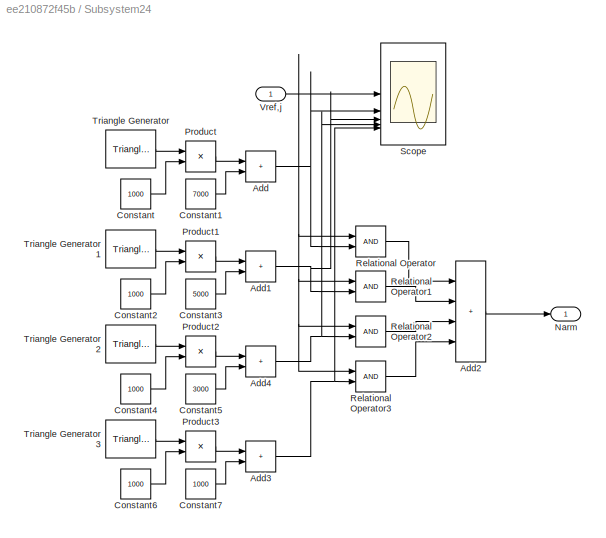
BLOCK [SubSystem] Subsystem24
BLOCK [Sum] Subsystem24/Add
  IconShape = rectangular
BLOCK [Sum] Subsystem24/Add1
  IconShape = rectangular
BLOCK [Sum] Subsystem24/Add2
  IconShape = rectangular
  Inputs = ++++
BLOCK [Sum] Subsystem24/Add3
  IconShape = rectangular
BLOCK [Sum] Subsystem24/Add4
  IconShape = rectangular
BLOCK [Constant] Subsystem24/Constant
  Value = 1000
BLOCK [Constant] Subsystem24/Constant1
  Value = 7000
BLOCK [Constant] Subsystem24/Constant2
  Value = 1000
BLOCK [Constant] Subsystem24/Constant3
  Value = 5000
BLOCK [Constant] Subsystem24/Constant4
  Value = 1000
BLOCK [Constant] Subsystem24/Constant5
  Value = 3000
BLOCK [Constant] Subsystem24/Constant6
  Value = 1000
BLOCK [Constant] Subsystem24/Constant7
  Value = 1000
BLOCK [Outport] Subsystem24/Narm
BLOCK [Product] Subsystem24/Product
BLOCK [Product] Subsystem24/Product1
BLOCK [Product] Subsystem24/Product2
BLOCK [Product] Subsystem24/Product3
BLOCK [RelationalOperator] Subsystem24/Relational Operator
  InputSameDT = off
  OutDataTypeStr = boolean
  RndMeth = Simplest
BLOCK [RelationalOperator] Subsystem24/Relational Operator1
  InputSameDT = off
  OutDataTypeStr = boolean
  RndMeth = Simplest
BLOCK [RelationalOperator] Subsystem24/Relational Operator2
  InputSameDT = off
  OutDataTypeStr = boolean
  RndMeth = Simplest
BLOCK [RelationalOperator] Subsystem24/Relational Operator3
  InputSameDT = off
  OutDataTypeStr = boolean
  RndMeth = Simplest
BLOCK [Scope] Subsystem24/Scope
  Floating = off
  NumInputPorts = 5
  ScopeSpecificationString = Simulink.scopes.TimeScopeBlockCfg('CurrentConfiguration', extmgr.ConfigurationSet(extmgr.Configuration('Core','General UI',true),extmgr.Configuration('Core','Source UI',true),extmgr.Configuration('Sources','WiredSimulink',true,'DataLoggingVariableName','ScopeData1'),extmgr.Configuration('Visuals','Time Domain',true,'SerializedDisplays',{struct('MinYLimReal','-822.40437','MaxYLimReal','9000.00000',...<+1541ch>
BLOCK [Reference] Subsystem24/Triangle Generator  REF=spsTriangleGeneratorLib/Triangle
Generator
  LibrarySourceBlock = sps_lib/Sources/Signal Generator Sources/Triangle\nGenerator
  SourceBlock = spsTriangleGeneratorLib/Triangle\nGenerator
  SourceType = Triangle Generator
BLOCK [Reference] Subsystem24/Triangle Generator1  REF=spsTriangleGeneratorLib/Triangle
Generator
  LibrarySourceBlock = sps_lib/Sources/Signal Generator Sources/Triangle\nGenerator
  SourceBlock = spsTriangleGeneratorLib/Triangle\nGenerator
  SourceType = Triangle Generator
BLOCK [Reference] Subsystem24/Triangle Generator2  REF=spsTriangleGeneratorLib/Triangle
Generator
  LibrarySourceBlock = sps_lib/Sources/Signal Generator Sources/Triangle\nGenerator
  SourceBlock = spsTriangleGeneratorLib/Triangle\nGenerator
  SourceType = Triangle Generator
BLOCK [Reference] Subsystem24/Triangle Generator3  REF=spsTriangleGeneratorLib/Triangle
Generator
  LibrarySourceBlock = sps_lib/Sources/Signal Generator Sources/Triangle\nGenerator
  SourceBlock = spsTriangleGeneratorLib/Triangle\nGenerator
  SourceType = Triangle Generator
BLOCK [Inport] Subsystem24/Vref,j
BLOCK [SubSystem] Subsystem25
BLOCK [Sum] Subsystem25/Add
  IconShape = rectangular
BLOCK [Sum] Subsystem25/Add1
  IconShape = rectangular
BLOCK [Sum] Subsystem25/Add2
  IconShape = rectangular
  Inputs = ++++
BLOCK [Sum] Subsystem25/Add3
  IconShape = rectangular
BLOCK [Sum] Subsystem25/Add4
  IconShape = rectangular
BLOCK [Constant] Subsystem25/Constant
  Value = 1000
BLOCK [Constant] Subsystem25/Constant1
  Value = 7000
BLOCK [Constant] Subsystem25/Constant2
  Value = 1000
BLOCK [Constant] Subsystem25/Constant3
  Value = 5000
BLOCK [Constant] Subsystem25/Constant4
  Value = 1000
BLOCK [Constant] Subsystem25/Constant5
  Value = 3000
BLOCK [Constant] Subsystem25/Constant6
  Value = 1000
BLOCK [Constant] Subsystem25/Constant7
  Value = 1000
BLOCK [Outport] Subsystem25/Narm
BLOCK [Product] Subsystem25/Product
BLOCK [Product] Subsystem25/Product1
BLOCK [Product] Subsystem25/Product2
BLOCK [Product] Subsystem25/Product3
BLOCK [RelationalOperator] Subsystem25/Relational Operator
  InputSameDT = off
  OutDataTypeStr = boolean
  RndMeth = Simplest
BLOCK [RelationalOperator] Subsystem25/Relational Operator1
  InputSameDT = off
  OutDataTypeStr = boolean
  RndMeth = Simplest
BLOCK [RelationalOperator] Subsystem25/Relational Operator2
  InputSameDT = off
  OutDataTypeStr = boolean
  RndMeth = Simplest
BLOCK [RelationalOperator] Subsystem25/Relational Operator3
  InputSameDT = off
  OutDataTypeStr = boolean
  RndMeth = Simplest
BLOCK [Reference] Subsystem25/Triangle Generator  REF=spsTriangleGeneratorLib/Triangle
Generator
  SourceBlock = spsTriangleGeneratorLib/Triangle\nGenerator
  SourceType = Triangle Generator
BLOCK [Reference] Subsystem25/Triangle Generator1  REF=spsTriangleGeneratorLib/Triangle
Generator
  SourceBlock = spsTriangleGeneratorLib/Triangle\nGenerator
  SourceType = Triangle Generator
BLOCK [Reference] Subsystem25/Triangle Generator2  REF=spsTriangleGeneratorLib/Triangle
Generator
  SourceBlock = spsTriangleGeneratorLib/Triangle\nGenerator
  SourceType = Triangle Generator
BLOCK [Reference] Subsystem25/Triangle Generator3  REF=spsTriangleGeneratorLib/Triangle
Generator
  SourceBlock = spsTriangleGeneratorLib/Triangle\nGenerator
  SourceType = Triangle Generator
BLOCK [Inport] Subsystem25/Vref,j
BLOCK [SubSystem] Subsystem26
BLOCK [Sum] Subsystem26/Add
  IconShape = rectangular
BLOCK [Sum] Subsystem26/Add1
  IconShape = rectangular
BLOCK [Sum] Subsystem26/Add2
  IconShape = rectangular
  Inputs = ++++
BLOCK [Sum] Subsystem26/Add3
  IconShape = rectangular
BLOCK [Sum] Subsystem26/Add4
  IconShape = rectangular
BLOCK [Constant] Subsystem26/Constant
  Value = 1000
BLOCK [Constant] Subsystem26/Constant1
  Value = 7000
BLOCK [Constant] Subsystem26/Constant2
  Value = 1000
BLOCK [Constant] Subsystem26/Constant3
  Value = 5000
BLOCK [Constant] Subsystem26/Constant4
  Value = 1000
BLOCK [Constant] Subsystem26/Constant5
  Value = 3000
BLOCK [Constant] Subsystem26/Constant6
  Value = 1000
BLOCK [Constant] Subsystem26/Constant7
  Value = 1000
BLOCK [Outport] Subsystem26/Narm
BLOCK [Product] Subsystem26/Product
BLOCK [Product] Subsystem26/Product1
BLOCK [Product] Subsystem26/Product2
BLOCK [Product] Subsystem26/Product3
BLOCK [RelationalOperator] Subsystem26/Relational Operator
  InputSameDT = off
  OutDataTypeStr = boolean
  RndMeth = Simplest
BLOCK [RelationalOperator] Subsystem26/Relational Operator1
  InputSameDT = off
  OutDataTypeStr = boolean
  RndMeth = Simplest
BLOCK [RelationalOperator] Subsystem26/Relational Operator2
  InputSameDT = off
  OutDataTypeStr = boolean
  RndMeth = Simplest
BLOCK [RelationalOperator] Subsystem26/Relational Operator3
  InputSameDT = off
  OutDataTypeStr = boolean
  RndMeth = Simplest
BLOCK [Reference] Subsystem26/Triangle Generator  REF=spsTriangleGeneratorLib/Triangle
Generator
  SourceBlock = spsTriangleGeneratorLib/Triangle\nGenerator
  SourceType = Triangle Generator
BLOCK [Reference] Subsystem26/Triangle Generator1  REF=spsTriangleGeneratorLib/Triangle
Generator
  SourceBlock = spsTriangleGeneratorLib/Triangle\nGenerator
  SourceType = Triangle Generator
BLOCK [Reference] Subsystem26/Triangle Generator2  REF=spsTriangleGeneratorLib/Triangle
Generator
  SourceBlock = spsTriangleGeneratorLib/Triangle\nGenerator
  SourceType = Triangle Generator
BLOCK [Reference] Subsystem26/Triangle Generator3  REF=spsTriangleGeneratorLib/Triangle
Generator
  SourceBlock = spsTriangleGeneratorLib/Triangle\nGenerator
  SourceType = Triangle Generator
BLOCK [Inport] Subsystem26/Vref,j
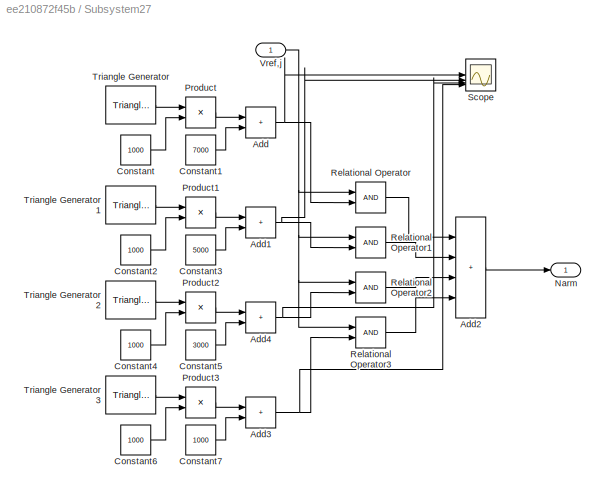
BLOCK [SubSystem] Subsystem27
BLOCK [Sum] Subsystem27/Add
  IconShape = rectangular
BLOCK [Sum] Subsystem27/Add1
  IconShape = rectangular
BLOCK [Sum] Subsystem27/Add2
  IconShape = rectangular
  Inputs = ++++
BLOCK [Sum] Subsystem27/Add3
  IconShape = rectangular
BLOCK [Sum] Subsystem27/Add4
  IconShape = rectangular
BLOCK [Constant] Subsystem27/Constant
  Value = 1000
BLOCK [Constant] Subsystem27/Constant1
  Value = 7000
BLOCK [Constant] Subsystem27/Constant2
  Value = 1000
BLOCK [Constant] Subsystem27/Constant3
  Value = 5000
BLOCK [Constant] Subsystem27/Constant4
  Value = 1000
BLOCK [Constant] Subsystem27/Constant5
  Value = 3000
BLOCK [Constant] Subsystem27/Constant6
  Value = 1000
BLOCK [Constant] Subsystem27/Constant7
  Value = 1000
BLOCK [Outport] Subsystem27/Narm
BLOCK [Product] Subsystem27/Product
BLOCK [Product] Subsystem27/Product1
BLOCK [Product] Subsystem27/Product2
BLOCK [Product] Subsystem27/Product3
BLOCK [RelationalOperator] Subsystem27/Relational Operator
  InputSameDT = off
  OutDataTypeStr = boolean
  RndMeth = Simplest
BLOCK [RelationalOperator] Subsystem27/Relational Operator1
  InputSameDT = off
  OutDataTypeStr = boolean
  RndMeth = Simplest
BLOCK [RelationalOperator] Subsystem27/Relational Operator2
  InputSameDT = off
  OutDataTypeStr = boolean
  RndMeth = Simplest
BLOCK [RelationalOperator] Subsystem27/Relational Operator3
  InputSameDT = off
  OutDataTypeStr = boolean
  RndMeth = Simplest
BLOCK [Scope] Subsystem27/Scope
  Floating = off
  NumInputPorts = 4
  ScopeSpecificationString = Simulink.scopes.TimeScopeBlockCfg('CurrentConfiguration', extmgr.ConfigurationSet(extmgr.Configuration('Core','General UI',true),extmgr.Configuration('Core','Source UI',true),extmgr.Configuration('Sources','WiredSimulink',true,'DataLoggingVariableName','ScopeData1'),extmgr.Configuration('Visuals','Time Domain',true,'SerializedDisplays',{struct('MinYLimReal','-1000.00000','MaxYLimReal','8439.89071'...<+1536ch>
BLOCK [Reference] Subsystem27/Triangle Generator  REF=spsTriangleGeneratorLib/Triangle
Generator
  SourceBlock = spsTriangleGeneratorLib/Triangle\nGenerator
  SourceType = Triangle Generator
BLOCK [Reference] Subsystem27/Triangle Generator1  REF=spsTriangleGeneratorLib/Triangle
Generator
  SourceBlock = spsTriangleGeneratorLib/Triangle\nGenerator
  SourceType = Triangle Generator
BLOCK [Reference] Subsystem27/Triangle Generator2  REF=spsTriangleGeneratorLib/Triangle
Generator
  SourceBlock = spsTriangleGeneratorLib/Triangle\nGenerator
  SourceType = Triangle Generator
BLOCK [Reference] Subsystem27/Triangle Generator3  REF=spsTriangleGeneratorLib/Triangle
Generator
  SourceBlock = spsTriangleGeneratorLib/Triangle\nGenerator
  SourceType = Triangle Generator
BLOCK [Inport] Subsystem27/Vref,j
BLOCK [SubSystem] Subsystem28
BLOCK [Sum] Subsystem28/Add
  IconShape = rectangular
BLOCK [Sum] Subsystem28/Add1
  IconShape = rectangular
BLOCK [Sum] Subsystem28/Add2
  IconShape = rectangular
  Inputs = ++++
BLOCK [Sum] Subsystem28/Add3
  IconShape = rectangular
BLOCK [Sum] Subsystem28/Add4
  IconShape = rectangular
BLOCK [Constant] Subsystem28/Constant
  Value = 1000
BLOCK [Constant] Subsystem28/Constant1
  Value = 7000
BLOCK [Constant] Subsystem28/Constant2
  Value = 1000
BLOCK [Constant] Subsystem28/Constant3
  Value = 5000
BLOCK [Constant] Subsystem28/Constant4
  Value = 1000
BLOCK [Constant] Subsystem28/Constant5
  Value = 3000
BLOCK [Constant] Subsystem28/Constant6
  Value = 1000
BLOCK [Constant] Subsystem28/Constant7
  Value = 1000
BLOCK [Outport] Subsystem28/Narm
BLOCK [Product] Subsystem28/Product
BLOCK [Product] Subsystem28/Product1
BLOCK [Product] Subsystem28/Product2
BLOCK [Product] Subsystem28/Product3
BLOCK [RelationalOperator] Subsystem28/Relational Operator
  InputSameDT = off
  OutDataTypeStr = boolean
  RndMeth = Simplest
BLOCK [RelationalOperator] Subsystem28/Relational Operator1
  InputSameDT = off
  OutDataTypeStr = boolean
  RndMeth = Simplest
BLOCK [RelationalOperator] Subsystem28/Relational Operator2
  InputSameDT = off
  OutDataTypeStr = boolean
  RndMeth = Simplest
BLOCK [RelationalOperator] Subsystem28/Relational Operator3
  InputSameDT = off
  OutDataTypeStr = boolean
  RndMeth = Simplest
BLOCK [Reference] Subsystem28/Triangle Generator  REF=spsTriangleGeneratorLib/Triangle
Generator
  SourceBlock = spsTriangleGeneratorLib/Triangle\nGenerator
  SourceType = Triangle Generator
BLOCK [Reference] Subsystem28/Triangle Generator1  REF=spsTriangleGeneratorLib/Triangle
Generator
  SourceBlock = spsTriangleGeneratorLib/Triangle\nGenerator
  SourceType = Triangle Generator
BLOCK [Reference] Subsystem28/Triangle Generator2  REF=spsTriangleGeneratorLib/Triangle
Generator
  SourceBlock = spsTriangleGeneratorLib/Triangle\nGenerator
  SourceType = Triangle Generator
BLOCK [Reference] Subsystem28/Triangle Generator3  REF=spsTriangleGeneratorLib/Triangle
Generator
  SourceBlock = spsTriangleGeneratorLib/Triangle\nGenerator
  SourceType = Triangle Generator
BLOCK [Inport] Subsystem28/Vref,j
BLOCK [SubSystem] Subsystem29
BLOCK [Sum] Subsystem29/Add
  IconShape = rectangular
BLOCK [Sum] Subsystem29/Add1
  IconShape = rectangular
BLOCK [Sum] Subsystem29/Add2
  IconShape = rectangular
  Inputs = ++++
BLOCK [Sum] Subsystem29/Add3
  IconShape = rectangular
BLOCK [Sum] Subsystem29/Add4
  IconShape = rectangular
BLOCK [Constant] Subsystem29/Constant
  Value = 1000
BLOCK [Constant] Subsystem29/Constant1
  Value = 7000
BLOCK [Constant] Subsystem29/Constant2
  Value = 1000
BLOCK [Constant] Subsystem29/Constant3
  Value = 5000
BLOCK [Constant] Subsystem29/Constant4
  Value = 1000
BLOCK [Constant] Subsystem29/Constant5
  Value = 3000
BLOCK [Constant] Subsystem29/Constant6
  Value = 1000
BLOCK [Constant] Subsystem29/Constant7
  Value = 1000
BLOCK [Outport] Subsystem29/Narm
BLOCK [Product] Subsystem29/Product
BLOCK [Product] Subsystem29/Product1
BLOCK [Product] Subsystem29/Product2
BLOCK [Product] Subsystem29/Product3
BLOCK [RelationalOperator] Subsystem29/Relational Operator
  InputSameDT = off
  OutDataTypeStr = boolean
  RndMeth = Simplest
BLOCK [RelationalOperator] Subsystem29/Relational Operator1
  InputSameDT = off
  OutDataTypeStr = boolean
  RndMeth = Simplest
BLOCK [RelationalOperator] Subsystem29/Relational Operator2
  InputSameDT = off
  OutDataTypeStr = boolean
  RndMeth = Simplest
BLOCK [RelationalOperator] Subsystem29/Relational Operator3
  InputSameDT = off
  OutDataTypeStr = boolean
  RndMeth = Simplest
BLOCK [Reference] Subsystem29/Triangle Generator  REF=spsTriangleGeneratorLib/Triangle
Generator
  SourceBlock = spsTriangleGeneratorLib/Triangle\nGenerator
  SourceType = Triangle Generator
BLOCK [Reference] Subsystem29/Triangle Generator1  REF=spsTriangleGeneratorLib/Triangle
Generator
  SourceBlock = spsTriangleGeneratorLib/Triangle\nGenerator
  SourceType = Triangle Generator
BLOCK [Reference] Subsystem29/Triangle Generator2  REF=spsTriangleGeneratorLib/Triangle
Generator
  SourceBlock = spsTriangleGeneratorLib/Triangle\nGenerator
  SourceType = Triangle Generator
BLOCK [Reference] Subsystem29/Triangle Generator3  REF=spsTriangleGeneratorLib/Triangle
Generator
  SourceBlock = spsTriangleGeneratorLib/Triangle\nGenerator
  SourceType = Triangle Generator
BLOCK [Inport] Subsystem29/Vref,j
BLOCK [SubSystem] Subsystem3
BLOCK [PMIOPort] Subsystem3/1
  Side = Right
BLOCK [PMIOPort] Subsystem3/2
  Port = 2
  Side = Right
BLOCK [Goto] Subsystem3/Goto1
  GotoTag = Vaup_sm4
  TagVisibility = global
BLOCK [Reference] Subsystem3/IGBT//Diode  REF=spsIGBTDiodeLib/IGBT//Diode
  NameLocation = right
  SourceBlock = spsIGBTDiodeLib/IGBT//Diode
  SourceType = IGBT/Diode
BLOCK [Reference] Subsystem3/IGBT//Diode1  REF=spsIGBTDiodeLib/IGBT//Diode
  NameLocation = right
  SourceBlock = spsIGBTDiodeLib/IGBT//Diode
  SourceType = IGBT/Diode
BLOCK [Logic] Subsystem3/NOT
  AllPortsSameDT = off
  IconShape = distinctive
  NameLocation = right
  Operator = NOT
  OutDataTypeStr = boolean
BLOCK [Reference] Subsystem3/Series RLC Branch  REF=spsSeriesRLCBranchLib/Series RLC Branch
  LibrarySourceBlock = sps_lib/Passives/Series RLC Branch
  NameLocation = left
  SourceBlock = spsSeriesRLCBranchLib/Series RLC Branch
  SourceType = Series RLC Branch
BLOCK [Reference] Subsystem3/Voltage Measurement  REF=spsVoltageMeasurementLib/Voltage Measurement
  LibrarySourceBlock = sps_lib/Sensors and Measurements/Voltage Measurement
  SourceBlock = spsVoltageMeasurementLib/Voltage Measurement
  SourceType = Voltage Measurement
  UserDataPersistent = on
BLOCK [Inport] Subsystem3/g
BLOCK [SubSystem] Subsystem4
BLOCK [PMIOPort] Subsystem4/1
  Side = Right
BLOCK [PMIOPort] Subsystem4/2
  Port = 2
  Side = Right
BLOCK [Goto] Subsystem4/Goto1
  GotoTag = Valow_sm1
  TagVisibility = global
BLOCK [Reference] Subsystem4/IGBT//Diode  REF=spsIGBTDiodeLib/IGBT//Diode
  NameLocation = right
  SourceBlock = spsIGBTDiodeLib/IGBT//Diode
  SourceType = IGBT/Diode
BLOCK [Reference] Subsystem4/IGBT//Diode1  REF=spsIGBTDiodeLib/IGBT//Diode
  NameLocation = right
  SourceBlock = spsIGBTDiodeLib/IGBT//Diode
  SourceType = IGBT/Diode
BLOCK [Logic] Subsystem4/NOT
  AllPortsSameDT = off
  IconShape = distinctive
  NameLocation = right
  Operator = NOT
  OutDataTypeStr = boolean
BLOCK [Reference] Subsystem4/Series RLC Branch  REF=spsSeriesRLCBranchLib/Series RLC Branch
  LibrarySourceBlock = sps_lib/Passives/Series RLC Branch
  NameLocation = left
  SourceBlock = spsSeriesRLCBranchLib/Series RLC Branch
  SourceType = Series RLC Branch
BLOCK [Reference] Subsystem4/Voltage Measurement  REF=spsVoltageMeasurementLib/Voltage Measurement
  LibrarySourceBlock = sps_lib/Sensors and Measurements/Voltage Measurement
  SourceBlock = spsVoltageMeasurementLib/Voltage Measurement
  SourceType = Voltage Measurement
  UserDataPersistent = on
BLOCK [Inport] Subsystem4/g
BLOCK [SubSystem] Subsystem5
BLOCK [PMIOPort] Subsystem5/1
  Side = Right
BLOCK [PMIOPort] Subsystem5/2
  Port = 2
  Side = Right
BLOCK [Goto] Subsystem5/Goto1
  GotoTag = Valow_sm2
  TagVisibility = global
BLOCK [Reference] Subsystem5/IGBT//Diode  REF=spsIGBTDiodeLib/IGBT//Diode
  NameLocation = right
  SourceBlock = spsIGBTDiodeLib/IGBT//Diode
  SourceType = IGBT/Diode
BLOCK [Reference] Subsystem5/IGBT//Diode1  REF=spsIGBTDiodeLib/IGBT//Diode
  NameLocation = right
  SourceBlock = spsIGBTDiodeLib/IGBT//Diode
  SourceType = IGBT/Diode
BLOCK [Logic] Subsystem5/NOT
  AllPortsSameDT = off
  IconShape = distinctive
  NameLocation = right
  Operator = NOT
  OutDataTypeStr = boolean
BLOCK [Reference] Subsystem5/Series RLC Branch  REF=spsSeriesRLCBranchLib/Series RLC Branch
  LibrarySourceBlock = sps_lib/Passives/Series RLC Branch
  NameLocation = left
  SourceBlock = spsSeriesRLCBranchLib/Series RLC Branch
  SourceType = Series RLC Branch
BLOCK [Reference] Subsystem5/Voltage Measurement  REF=spsVoltageMeasurementLib/Voltage Measurement
  LibrarySourceBlock = sps_lib/Sensors and Measurements/Voltage Measurement
  SourceBlock = spsVoltageMeasurementLib/Voltage Measurement
  SourceType = Voltage Measurement
  UserDataPersistent = on
BLOCK [Inport] Subsystem5/g
BLOCK [SubSystem] Subsystem6
BLOCK [PMIOPort] Subsystem6/1
  Side = Right
BLOCK [PMIOPort] Subsystem6/2
  Port = 2
  Side = Right
BLOCK [Goto] Subsystem6/Goto1
  GotoTag = Valow_sm3
  TagVisibility = global
BLOCK [Reference] Subsystem6/IGBT//Diode  REF=spsIGBTDiodeLib/IGBT//Diode
  NameLocation = right
  SourceBlock = spsIGBTDiodeLib/IGBT//Diode
  SourceType = IGBT/Diode
BLOCK [Reference] Subsystem6/IGBT//Diode1  REF=spsIGBTDiodeLib/IGBT//Diode
  NameLocation = right
  SourceBlock = spsIGBTDiodeLib/IGBT//Diode
  SourceType = IGBT/Diode
BLOCK [Logic] Subsystem6/NOT
  AllPortsSameDT = off
  IconShape = distinctive
  NameLocation = right
  Operator = NOT
  OutDataTypeStr = boolean
BLOCK [Reference] Subsystem6/Series RLC Branch  REF=spsSeriesRLCBranchLib/Series RLC Branch
  LibrarySourceBlock = sps_lib/Passives/Series RLC Branch
  NameLocation = left
  SourceBlock = spsSeriesRLCBranchLib/Series RLC Branch
  SourceType = Series RLC Branch
BLOCK [Reference] Subsystem6/Voltage Measurement  REF=spsVoltageMeasurementLib/Voltage Measurement
  LibrarySourceBlock = sps_lib/Sensors and Measurements/Voltage Measurement
  SourceBlock = spsVoltageMeasurementLib/Voltage Measurement
  SourceType = Voltage Measurement
  UserDataPersistent = on
BLOCK [Inport] Subsystem6/g
BLOCK [SubSystem] Subsystem7
BLOCK [PMIOPort] Subsystem7/1
  Side = Right
BLOCK [PMIOPort] Subsystem7/2
  Port = 2
  Side = Right
BLOCK [Goto] Subsystem7/Goto1
  GotoTag = Valow_sm4
  TagVisibility = global
BLOCK [Reference] Subsystem7/IGBT//Diode  REF=spsIGBTDiodeLib/IGBT//Diode
  NameLocation = right
  SourceBlock = spsIGBTDiodeLib/IGBT//Diode
  SourceType = IGBT/Diode
BLOCK [Reference] Subsystem7/IGBT//Diode1  REF=spsIGBTDiodeLib/IGBT//Diode
  NameLocation = right
  SourceBlock = spsIGBTDiodeLib/IGBT//Diode
  SourceType = IGBT/Diode
BLOCK [Logic] Subsystem7/NOT
  AllPortsSameDT = off
  IconShape = distinctive
  NameLocation = right
  Operator = NOT
  OutDataTypeStr = boolean
BLOCK [Reference] Subsystem7/Series RLC Branch  REF=spsSeriesRLCBranchLib/Series RLC Branch
  LibrarySourceBlock = sps_lib/Passives/Series RLC Branch
  NameLocation = left
  SourceBlock = spsSeriesRLCBranchLib/Series RLC Branch
  SourceType = Series RLC Branch
BLOCK [Reference] Subsystem7/Voltage Measurement  REF=spsVoltageMeasurementLib/Voltage Measurement
  LibrarySourceBlock = sps_lib/Sensors and Measurements/Voltage Measurement
  SourceBlock = spsVoltageMeasurementLib/Voltage Measurement
  SourceType = Voltage Measurement
  UserDataPersistent = on
BLOCK [Inport] Subsystem7/g
BLOCK [SubSystem] Subsystem8
BLOCK [PMIOPort] Subsystem8/1
  Side = Right
BLOCK [PMIOPort] Subsystem8/2
  Port = 2
  Side = Right
BLOCK [Goto] Subsystem8/Goto1
  GotoTag = Vbup_sm1
  TagVisibility = global
BLOCK [Reference] Subsystem8/IGBT//Diode  REF=spsIGBTDiodeLib/IGBT//Diode
  NameLocation = right
  SourceBlock = spsIGBTDiodeLib/IGBT//Diode
  SourceType = IGBT/Diode
BLOCK [Reference] Subsystem8/IGBT//Diode1  REF=spsIGBTDiodeLib/IGBT//Diode
  NameLocation = right
  SourceBlock = spsIGBTDiodeLib/IGBT//Diode
  SourceType = IGBT/Diode
BLOCK [Logic] Subsystem8/NOT
  AllPortsSameDT = off
  IconShape = distinctive
  NameLocation = right
  Operator = NOT
  OutDataTypeStr = boolean
BLOCK [Reference] Subsystem8/Series RLC Branch  REF=spsSeriesRLCBranchLib/Series RLC Branch
  LibrarySourceBlock = sps_lib/Passives/Series RLC Branch
  NameLocation = left
  SourceBlock = spsSeriesRLCBranchLib/Series RLC Branch
  SourceType = Series RLC Branch
BLOCK [Reference] Subsystem8/Voltage Measurement  REF=spsVoltageMeasurementLib/Voltage Measurement
  LibrarySourceBlock = sps_lib/Sensors and Measurements/Voltage Measurement
  SourceBlock = spsVoltageMeasurementLib/Voltage Measurement
  SourceType = Voltage Measurement
  UserDataPersistent = on
BLOCK [Inport] Subsystem8/g
BLOCK [SubSystem] Subsystem9
BLOCK [PMIOPort] Subsystem9/1
  Side = Right
BLOCK [PMIOPort] Subsystem9/2
  Port = 2
  Side = Right
BLOCK [Goto] Subsystem9/Goto1
  GotoTag = Vbup_sm2
  TagVisibility = global
BLOCK [Reference] Subsystem9/IGBT//Diode  REF=spsIGBTDiodeLib/IGBT//Diode
  NameLocation = right
  SourceBlock = spsIGBTDiodeLib/IGBT//Diode
  SourceType = IGBT/Diode
BLOCK [Reference] Subsystem9/IGBT//Diode1  REF=spsIGBTDiodeLib/IGBT//Diode
  NameLocation = right
  SourceBlock = spsIGBTDiodeLib/IGBT//Diode
  SourceType = IGBT/Diode
BLOCK [Logic] Subsystem9/NOT
  AllPortsSameDT = off
  IconShape = distinctive
  NameLocation = right
  Operator = NOT
  OutDataTypeStr = boolean
BLOCK [Reference] Subsystem9/Series RLC Branch  REF=spsSeriesRLCBranchLib/Series RLC Branch
  LibrarySourceBlock = sps_lib/Passives/Series RLC Branch
  NameLocation = left
  SourceBlock = spsSeriesRLCBranchLib/Series RLC Branch
  SourceType = Series RLC Branch
BLOCK [Reference] Subsystem9/Voltage Measurement  REF=spsVoltageMeasurementLib/Voltage Measurement
  LibrarySourceBlock = sps_lib/Sensors and Measurements/Voltage Measurement
  SourceBlock = spsVoltageMeasurementLib/Voltage Measurement
  SourceType = Voltage Measurement
  UserDataPersistent = on
BLOCK [Inport] Subsystem9/g
BLOCK [Sum] Sum
  Inputs = |+-
BLOCK [Sum] Sum1
  Inputs = ++-
BLOCK [Sum] Sum10
  Inputs = |--+
BLOCK [Sum] Sum11
  Inputs = |-++
BLOCK [Sum] Sum12
  Commented = on
  Inputs = |-+
BLOCK [Sum] Sum13
  Commented = on
  Inputs = |++
BLOCK [Sum] Sum14
  Commented = on
  Inputs = |-+
BLOCK [Sum] Sum15
  Commented = on
  Inputs = |++
BLOCK [Sum] Sum2
  Inputs = |-+
BLOCK [Sum] Sum3
  Inputs = +++
BLOCK [Sum] Sum4
  Inputs = |++
BLOCK [Sum] Sum5
  Inputs = |++
BLOCK [Sum] Sum6
  Inputs = |+-
BLOCK [Sum] Sum7
  Inputs = -+|
BLOCK [Sum] Sum8
  Inputs = |++
BLOCK [Sum] Sum9
  Inputs = -+|
BLOCK [Reference] Three-Phase Series RLC Branch  REF=spsThreePhaseSeriesRLCBranchLib/Three-Phase
Series RLC Branch
  AttributesFormatString = \n
  LibrarySourceBlock = sps_lib/Passives/Three-Phase\nSeries RLC Branch
  NameLocation = top
  SourceBlock = spsThreePhaseSeriesRLCBranchLib/Three-Phase\nSeries RLC Branch
  SourceType = Three-Phase Series RLC Branch
BLOCK [Reference] Three-Phase Source  REF=spsThreePhaseSourceLib/Three-Phase Source
  LibrarySourceBlock = sps_lib/Sources/Three-Phase Source
  SourceBlock = spsThreePhaseSourceLib/Three-Phase Source
  SourceType = Three-Phase Source
BLOCK [Reference] Three-Phase V-I Measurement  REF=spsThreePhaseVIMeasurementLib/Three-Phase
V-I Measurement
  LibrarySourceBlock = sps_lib/Sensors and Measurements/Three-Phase\nV-I Measurement
  SourceBlock = spsThreePhaseVIMeasurementLib/Three-Phase\nV-I Measurement
  SourceType = Three-Phase VI Measurement
BLOCK [Reference] Voltage Measurement  REF=spsVoltageMeasurementLib/Voltage Measurement
  LibrarySourceBlock = sps_lib/Sensors and Measurements/Voltage Measurement
  SourceBlock = spsVoltageMeasurementLib/Voltage Measurement
  SourceType = Voltage Measurement
  UserDataPersistent = on
BLOCK [Reference] Voltage Measurement1  REF=spsVoltageMeasurementLib/Voltage Measurement
  LibrarySourceBlock = sps_lib/Sensors and Measurements/Voltage Measurement
  SourceBlock = spsVoltageMeasurementLib/Voltage Measurement
  SourceType = Voltage Measurement
  UserDataPersistent = on
BLOCK [Reference] Voltage Measurement2  REF=spsVoltageMeasurementLib/Voltage Measurement
  LibrarySourceBlock = sps_lib/Sensors and Measurements/Voltage Measurement
  SourceBlock = spsVoltageMeasurementLib/Voltage Measurement
  SourceType = Voltage Measurement
  UserDataPersistent = on
BLOCK [Reference] Voltage Measurement3  REF=spsVoltageMeasurementLib/Voltage Measurement
  LibrarySourceBlock = sps_lib/Sensors and Measurements/Voltage Measurement
  SourceBlock = spsVoltageMeasurementLib/Voltage Measurement
  SourceType = Voltage Measurement
  UserDataPersistent = on
BLOCK [Reference] abc to dq0  REF=spsabctodq0Lib/abc to dq0
  LibrarySourceBlock = sps_lib/Control/abc to dq0
  SourceBlock = spsabctodq0Lib/abc to dq0
  SourceType = abc to dq0 Transformation
BLOCK [Reference] abc to dq1  REF=spsabctodq0Lib/abc to dq0
  LibrarySourceBlock = sps_lib/Control/abc to dq0
  SourceBlock = spsabctodq0Lib/abc to dq0
  SourceType = abc to dq0 Transformation
BLOCK [Reference] abc to dq2  REF=spsabctodq0Lib/abc to dq0
  LibrarySourceBlock = sps_lib/Control/abc to dq0
  SourceBlock = spsabctodq0Lib/abc to dq0
  SourceType = abc to dq0 Transformation
BLOCK [Reference] dq0 to abc  REF=spsdq0toabcLib/dq0 to abc
  LibrarySourceBlock = sps_lib/Control/dq0 to abc
  SourceBlock = spsdq0toabcLib/dq0 to abc
  SourceType = dq0 to abc Transformation
BLOCK [Reference] dq0 to abc1  REF=spsdq0toabcLib/dq0 to abc
  LibrarySourceBlock = sps_lib/Control/dq0 to abc
  SourceBlock = spsdq0toabcLib/dq0 to abc
  SourceType = dq0 to abc Transformation
BLOCK [Reference] powergui  REF=sps_lib/powergui
  LibrarySourceBlock = sps_lib/powergui
  Priority = 1
  SourceBlock = sps_lib/powergui
  SourceType = PSB option menu block
ANNOTATION (root): Circulating Current Control
ANNOTATION (root): Current Controller
ANNOTATION (root): Idq
ANNOTATION (root): PLL
ANNOTATION (root): PQ Reference
ANNOTATION (root): Up_a
ANNOTATION (root): Up_b
ANNOTATION (root): Up_c
ANNOTATION (root): Vref up/low abc
ANNOTATION (root): izdq
ANNOTATION (root): low_a
ANNOTATION (root): low_b
ANNOTATION (root): low_c
LINE Constant10:1 -> Sum7:2
NET Constant11:1 -> Product7:2, Product8:1
LINE Constant12:1 -> Mux3:3
LINE Constant13:1 -> Product9:2
LINE Constant14:1 -> Product10:2
LINE Constant15:1 -> Product11:2
LINE Constant16:1 -> Product6:2
LINE Constant17:1 -> Product12:2
LINE Constant18:1 -> Product13:2
LINE Constant19:1 -> Product14:2
LINE Constant1:1 -> Goto40:1
LINE Constant20:1 -> Sine Wave Generator (Three-Phase):1
LINE Constant21:1 -> Sine Wave Generator (Three-Phase):2
LINE Constant22:1 -> Sine Wave Generator (Three-Phase):3
LINE Constant23:1 -> Sine Wave Generator (Three-Phase)1:1
LINE Constant24:1 -> Sine Wave Generator (Three-Phase)1:2
LINE Constant25:1 -> Sine Wave Generator (Three-Phase)1:3
LINE Constant26:1 -> Product15:2
LINE Constant27:1 -> Product16:2
NET Constant2:1 -> Product1:2, Product2:2
LINE Constant3:1 -> Mux:3
LINE Constant5:1 -> Product4:2
LINE Constant6:1 -> Sum4:2
LINE Constant7:1 -> Product3:2
LINE Constant8:1 -> Product5:2
LINE Constant9:1 -> Sum6:1
LINE Constant:1 -> Product:2
LINE Current Measurement1:1 -> Goto9:1
LINE Current Measurement2:1 -> Goto10:1
LINE Current Measurement3:1 -> Goto5:1
LINE Current Measurement4:1 -> Goto6:1
LINE Current Measurement5:1 -> Goto7:1
LINE Current Measurement6:1 -> Goto2:1
LINE Current Measurement7:1 -> Goto4:1
LINE Current Measurement8:1 -> Goto3:1
LINE Current Measurement:1 -> Goto8:1
LINE Demux1:1 -> Goto42:1
LINE Demux1:2 -> Goto43:1
LINE Demux1:3 -> Goto44:1
LINE Demux2:1 -> Goto47:1
LINE Demux2:2 -> Goto48:1
LINE Demux2:3 -> Goto49:1
NET Demux3:1 -> Goto52:1, Scope23:1
NET Demux3:2 -> Goto53:1, Scope23:2
NET Demux3:3 -> Goto54:1, Scope23:3
LINE Demux4:1 -> Goto55:1
LINE Demux4:2 -> Goto56:1
LINE Demux4:3 -> Goto57:1
LINE Demux5:1 -> Goto58:1
LINE Demux5:2 -> Goto59:1
LINE Demux5:3 -> Goto60:1
LINE Demux6:1 -> Goto61:1
LINE Demux6:2 -> Goto62:1
LINE Demux6:3 -> Goto63:1
LINE Demux7:1 -> Goto64:1
LINE Demux7:2 -> Goto65:1
LINE Demux7:3 -> Goto66:1
LINE Demux8:1 -> Goto67:1
LINE Demux8:2 -> Goto68:1
LINE Demux8:3 -> Goto69:1
LINE Demux:1 -> Goto35:1
NET Demux:2 -> Goto36:1, PID Controller:1
LINE Demux:3 -> Goto37:1
LINE From100:1 -> Scope6:4
LINE From101:1 -> Product14:1
LINE From102:1 -> Product6:1
LINE From103:1 -> Scope20:1
LINE From104:1 -> Sum14:1
LINE From105:1 -> Product12:1
LINE From106:1 -> Product15:1
LINE From107:1 -> Scope20:2
LINE From108:1 -> Sum15:1
LINE From109:1 -> Product16:1
LINE From10:1 -> MATLAB Function1:2
LINE From11:1 -> MATLAB Function1:3
LINE From12:1 -> MATLAB Function1:4
LINE From13:1 -> MATLAB Function1:5
LINE From14:1 -> Subsystem8:1
LINE From15:1 -> Subsystem9:1
LINE From16:1 -> Subsystem10:1
LINE From17:1 -> Subsystem11:1
LINE From18:1 -> MATLAB Function2:2
LINE From19:1 -> MATLAB Function2:3
LINE From1:1 -> MATLAB Function:2
LINE From20:1 -> MATLAB Function2:4
LINE From21:1 -> MATLAB Function2:5
LINE From22:1 -> MATLAB Function2:1
LINE From23:1 -> Subsystem12:1
LINE From24:1 -> Subsystem13:1
LINE From25:1 -> Subsystem14:1
LINE From26:1 -> Subsystem15:1
LINE From27:1 -> MATLAB Function3:1
LINE From28:1 -> MATLAB Function3:2
LINE From29:1 -> MATLAB Function4:2
LINE From2:1 -> MATLAB Function:3
LINE From30:1 -> MATLAB Function4:3
LINE From31:1 -> MATLAB Function4:4
LINE From32:1 -> MATLAB Function4:5
LINE From33:1 -> MATLAB Function5:2
LINE From34:1 -> MATLAB Function5:3
LINE From35:1 -> MATLAB Function3:3
LINE From36:1 -> MATLAB Function5:4
LINE From37:1 -> MATLAB Function5:5
LINE From38:1 -> MATLAB Function5:1
LINE From39:1 -> MATLAB Function3:4
LINE From3:1 -> MATLAB Function:4
LINE From40:1 -> MATLAB Function3:5
LINE From41:1 -> MATLAB Function4:1
LINE From42:1 -> Subsystem4:1
LINE From43:1 -> Subsystem5:1
LINE From44:1 -> Subsystem6:1
LINE From45:1 -> Subsystem7:1
LINE From46:1 -> Subsystem16:1
LINE From47:1 -> Subsystem17:1
LINE From48:1 -> Subsystem18:1
LINE From49:1 -> Subsystem19:1
LINE From4:1 -> MATLAB Function:5
LINE From50:1 -> Subsystem20:1
LINE From51:1 -> Subsystem21:1
LINE From52:1 -> Subsystem22:1
LINE From53:1 -> Subsystem23:1
LINE From54:1 -> abc to dq0:1
LINE From55:1 -> Math Reciprocal:1
LINE From56:1 -> Sum3:3
LINE From57:1 -> Sum1:1
LINE From58:1 -> Sum:1
NET From59:1 -> Product1:1, Sum:2
LINE From5:1 -> Subsystem:1
LINE From60:1 -> dq0 to abc:2
NET From61:1 -> Product2:1, Sum2:1
LINE From62:1 -> Sum2:2
LINE From63:1 -> abc to dq2:1
LINE From64:1 -> abc to dq2:2
LINE From65:1 -> Mux1:1
LINE From66:1 -> Mux1:2
LINE From67:1 -> Mux1:3
LINE From68:1 -> Mux2:1
LINE From69:1 -> Mux2:2
LINE From6:1 -> Subsystem1:1
LINE From70:1 -> Mux2:3
LINE From71:1 -> Product5:1
NET From72:1 -> Product7:1, Sum6:2
NET From73:1 -> Product8:2, Sum7:1
LINE From74:1 -> Product13:1
LINE From75:1 -> Sum10:1
LINE From76:1 -> Product9:1
LINE From77:1 -> Sum10:2
LINE From78:1 -> Product10:1
LINE From79:1 -> Sum11:1
LINE From7:1 -> Subsystem2:1
LINE From80:1 -> Sum11:2
LINE From81:1 -> Product11:1
NET From82:1 -> Scope8:1, Subsystem24:1
LINE From83:1 -> Subsystem25:1
LINE From84:1 -> Subsystem26:1
LINE From85:1 -> Subsystem27:1
LINE From86:1 -> Subsystem28:1
LINE From87:1 -> Subsystem29:1
LINE From88:1 -> Scope1:1
LINE From89:1 -> Scope1:2
LINE From8:1 -> Subsystem3:1
LINE From90:1 -> Scope2:1
LINE From91:1 -> Scope2:2
LINE From92:1 -> Power Measurement (Three-Phase):1
LINE From93:1 -> Power Measurement (Three-Phase):2
LINE From94:1 -> Scope4:1
LINE From95:1 -> Scope5:1
LINE From96:1 -> Scope5:2
LINE From97:1 -> Scope6:1
LINE From98:1 -> Scope6:2
LINE From99:1 -> Scope6:3
LINE From9:1 -> MATLAB Function1:1
LINE From:1 -> MATLAB Function:1
NET Integrator:1 -> Goto38:1, abc to dq0:2
LINE MATLAB Function1:1 -> Goto15:1
LINE MATLAB Function1:2 -> Goto16:1
LINE MATLAB Function1:3 -> Goto17:1
LINE MATLAB Function1:4 -> Goto18:1
LINE MATLAB Function2:1 -> Goto19:1
LINE MATLAB Function2:2 -> Goto20:1
LINE MATLAB Function2:3 -> Goto21:1
LINE MATLAB Function2:4 -> Goto22:1
LINE MATLAB Function3:1 -> Goto23:1
LINE MATLAB Function3:2 -> Goto24:1
LINE MATLAB Function3:3 -> Goto25:1
LINE MATLAB Function3:4 -> Goto26:1
LINE MATLAB Function4:1 -> Goto27:1
LINE MATLAB Function4:2 -> Goto28:1
LINE MATLAB Function4:3 -> Goto29:1
LINE MATLAB Function4:4 -> Goto30:1
LINE MATLAB Function5:1 -> Goto31:1
LINE MATLAB Function5:2 -> Goto32:1
LINE MATLAB Function5:3 -> Goto33:1
LINE MATLAB Function5:4 -> Goto34:1
LINE MATLAB Function:1 -> Goto11:1
LINE MATLAB Function:2 -> Goto12:1
LINE MATLAB Function:3 -> Goto13:1
LINE MATLAB Function:4 -> Goto14:1
LINE Math Reciprocal:1 -> Product:3
LINE Mux1:1 -> Product3:1
LINE Mux2:1 -> Product4:1
LINE Mux3:1 -> dq0 to abc1:1
LINE Mux:1 -> dq0 to abc:1
LINE PID Controller1:1 -> Sum1:2
LINE PID Controller2:1 -> Sum3:2
LINE PID Controller3:1 -> Sum8:1
LINE PID Controller4:1 -> Sum9:2
LINE PID Controller:1 -> Sum4:1
LINE Power Measurement (Three-Phase):1 -> Scope3:1
LINE Power Measurement (Three-Phase):2 -> Scope3:2
LINE Product10:1 -> Sum10:3
LINE Product11:1 -> Sum11:3
LINE Product12:1 -> Sum13:2
NET Product13:1 -> Goto70:1, Scope19:1, Sum12:1
LINE Product14:1 -> Sum13:1
LINE Product15:1 -> Sum14:2
LINE Product16:1 -> Sum15:2
LINE Product1:1 -> Sum3:1
LINE Product2:1 -> Sum1:3
LINE Product3:1 -> Sum5:1
LINE Product4:1 -> Sum5:2
LINE Product5:1 -> abc to dq1:2
LINE Product6:1 -> Sum12:2
LINE Product7:1 -> Sum9:1
LINE Product8:1 -> Sum8:2
LINE Product9:1 -> dq0 to abc1:2
LINE Product:1 -> Goto39:1
NET Sine Wave Generator (Three-Phase)1:1 -> Product14:3, Scope10:1
NET Sine Wave Generator (Three-Phase):1 -> Product13:3, Scope9:1
LINE Step:1 -> Product:1
LINE Subsystem/NOT:1 -> Subsystem/IGBT//Diode1:1
LINE Subsystem/Voltage Measurement:1 -> Subsystem/Goto1:1
NET Subsystem/g:1 -> Subsystem/IGBT//Diode:1, Subsystem/NOT:1
LINE Subsystem1/NOT:1 -> Subsystem1/IGBT//Diode1:1
LINE Subsystem1/Voltage Measurement:1 -> Subsystem1/Goto1:1
NET Subsystem1/g:1 -> Subsystem1/IGBT//Diode:1, Subsystem1/NOT:1
LINE Subsystem10/NOT:1 -> Subsystem10/IGBT//Diode1:1
LINE Subsystem10/Voltage Measurement:1 -> Subsystem10/Goto1:1
NET Subsystem10/g:1 -> Subsystem10/IGBT//Diode:1, Subsystem10/NOT:1
LINE Subsystem11/NOT:1 -> Subsystem11/IGBT//Diode1:1
LINE Subsystem11/Voltage Measurement:1 -> Subsystem11/Goto1:1
NET Subsystem11/g:1 -> Subsystem11/IGBT//Diode:1, Subsystem11/NOT:1
LINE Subsystem12/NOT:1 -> Subsystem12/IGBT//Diode1:1
LINE Subsystem12/Voltage Measurement:1 -> Subsystem12/Goto1:1
NET Subsystem12/g:1 -> Subsystem12/IGBT//Diode:1, Subsystem12/NOT:1
LINE Subsystem13/NOT:1 -> Subsystem13/IGBT//Diode1:1
LINE Subsystem13/Voltage Measurement:1 -> Subsystem13/Goto1:1
NET Subsystem13/g:1 -> Subsystem13/IGBT//Diode:1, Subsystem13/NOT:1
LINE Subsystem14/NOT:1 -> Subsystem14/IGBT//Diode1:1
LINE Subsystem14/Voltage Measurement:1 -> Subsystem14/Goto1:1
NET Subsystem14/g:1 -> Subsystem14/IGBT//Diode:1, Subsystem14/NOT:1
LINE Subsystem15/NOT:1 -> Subsystem15/IGBT//Diode1:1
LINE Subsystem15/Voltage Measurement:1 -> Subsystem15/Goto1:1
NET Subsystem15/g:1 -> Subsystem15/IGBT//Diode:1, Subsystem15/NOT:1
LINE Subsystem16/NOT:1 -> Subsystem16/IGBT//Diode1:1
LINE Subsystem16/Voltage Measurement:1 -> Subsystem16/Goto1:1
NET Subsystem16/g:1 -> Subsystem16/IGBT//Diode:1, Subsystem16/NOT:1
LINE Subsystem17/NOT:1 -> Subsystem17/IGBT//Diode1:1
LINE Subsystem17/Voltage Measurement:1 -> Subsystem17/Goto1:1
NET Subsystem17/g:1 -> Subsystem17/IGBT//Diode:1, Subsystem17/NOT:1
LINE Subsystem18/NOT:1 -> Subsystem18/IGBT//Diode1:1
LINE Subsystem18/Voltage Measurement:1 -> Subsystem18/Goto1:1
NET Subsystem18/g:1 -> Subsystem18/IGBT//Diode:1, Subsystem18/NOT:1
LINE Subsystem19/NOT:1 -> Subsystem19/IGBT//Diode1:1
LINE Subsystem19/Voltage Measurement:1 -> Subsystem19/Goto1:1
NET Subsystem19/g:1 -> Subsystem19/IGBT//Diode:1, Subsystem19/NOT:1
LINE Subsystem2/NOT:1 -> Subsystem2/IGBT//Diode1:1
LINE Subsystem2/Voltage Measurement:1 -> Subsystem2/Goto1:1
NET Subsystem2/g:1 -> Subsystem2/IGBT//Diode:1, Subsystem2/NOT:1
LINE Subsystem20/NOT:1 -> Subsystem20/IGBT//Diode1:1
LINE Subsystem20/Voltage Measurement:1 -> Subsystem20/Goto1:1
NET Subsystem20/g:1 -> Subsystem20/IGBT//Diode:1, Subsystem20/NOT:1
LINE Subsystem21/NOT:1 -> Subsystem21/IGBT//Diode1:1
LINE Subsystem21/Voltage Measurement:1 -> Subsystem21/Goto1:1
NET Subsystem21/g:1 -> Subsystem21/IGBT//Diode:1, Subsystem21/NOT:1
LINE Subsystem22/NOT:1 -> Subsystem22/IGBT//Diode1:1
LINE Subsystem22/Voltage Measurement:1 -> Subsystem22/Goto1:1
NET Subsystem22/g:1 -> Subsystem22/IGBT//Diode:1, Subsystem22/NOT:1
LINE Subsystem23/NOT:1 -> Subsystem23/IGBT//Diode1:1
LINE Subsystem23/Voltage Measurement:1 -> Subsystem23/Goto1:1
NET Subsystem23/g:1 -> Subsystem23/IGBT//Diode:1, Subsystem23/NOT:1
NET Subsystem24/Add1:1 -> Subsystem24/Relational Operator1:2, Subsystem24/Scope:3
LINE Subsystem24/Add2:1 -> Subsystem24/Narm:1
NET Subsystem24/Add3:1 -> Subsystem24/Relational Operator3:2, Subsystem24/Scope:5
NET Subsystem24/Add4:1 -> Subsystem24/Relational Operator2:2, Subsystem24/Scope:4
NET Subsystem24/Add:1 -> Subsystem24/Relational Operator:2, Subsystem24/Scope:2
LINE Subsystem24/Constant1:1 -> Subsystem24/Add:2
LINE Subsystem24/Constant2:1 -> Subsystem24/Product1:2
LINE Subsystem24/Constant3:1 -> Subsystem24/Add1:2
LINE Subsystem24/Constant4:1 -> Subsystem24/Product2:2
LINE Subsystem24/Constant5:1 -> Subsystem24/Add4:2
LINE Subsystem24/Constant6:1 -> Subsystem24/Product3:2
LINE Subsystem24/Constant7:1 -> Subsystem24/Add3:2
LINE Subsystem24/Constant:1 -> Subsystem24/Product:2
LINE Subsystem24/Product1:1 -> Subsystem24/Add1:1
LINE Subsystem24/Product2:1 -> Subsystem24/Add4:1
LINE Subsystem24/Product3:1 -> Subsystem24/Add3:1
LINE Subsystem24/Product:1 -> Subsystem24/Add:1
LINE Subsystem24/Relational Operator1:1 -> Subsystem24/Add2:2
LINE Subsystem24/Relational Operator2:1 -> Subsystem24/Add2:3
LINE Subsystem24/Relational Operator3:1 -> Subsystem24/Add2:4
LINE Subsystem24/Relational Operator:1 -> Subsystem24/Add2:1
LINE Subsystem24/Triangle Generator1:1 -> Subsystem24/Product1:1
LINE Subsystem24/Triangle Generator2:1 -> Subsystem24/Product2:1
LINE Subsystem24/Triangle Generator3:1 -> Subsystem24/Product3:1
LINE Subsystem24/Triangle Generator:1 -> Subsystem24/Product:1
NET Subsystem24/Vref,j:1 -> Subsystem24/Relational Operator1:1, Subsystem24/Relational Operator2:1, Subsystem24/Relational Operator3:1, Subsystem24/Relational Operator:1, Subsystem24/Scope:1
NET Subsystem24:1 -> MATLAB Function:6, Scope13:1
LINE Subsystem25/Add1:1 -> Subsystem25/Relational Operator1:2
LINE Subsystem25/Add2:1 -> Subsystem25/Narm:1
LINE Subsystem25/Add3:1 -> Subsystem25/Relational Operator3:2
LINE Subsystem25/Add4:1 -> Subsystem25/Relational Operator2:2
LINE Subsystem25/Add:1 -> Subsystem25/Relational Operator:2
LINE Subsystem25/Constant1:1 -> Subsystem25/Add:2
LINE Subsystem25/Constant2:1 -> Subsystem25/Product1:2
LINE Subsystem25/Constant3:1 -> Subsystem25/Add1:2
LINE Subsystem25/Constant4:1 -> Subsystem25/Product2:2
LINE Subsystem25/Constant5:1 -> Subsystem25/Add4:2
LINE Subsystem25/Constant6:1 -> Subsystem25/Product3:2
LINE Subsystem25/Constant7:1 -> Subsystem25/Add3:2
LINE Subsystem25/Constant:1 -> Subsystem25/Product:2
LINE Subsystem25/Product1:1 -> Subsystem25/Add1:1
LINE Subsystem25/Product2:1 -> Subsystem25/Add4:1
LINE Subsystem25/Product3:1 -> Subsystem25/Add3:1
LINE Subsystem25/Product:1 -> Subsystem25/Add:1
LINE Subsystem25/Relational Operator1:1 -> Subsystem25/Add2:2
LINE Subsystem25/Relational Operator2:1 -> Subsystem25/Add2:3
LINE Subsystem25/Relational Operator3:1 -> Subsystem25/Add2:4
LINE Subsystem25/Relational Operator:1 -> Subsystem25/Add2:1
LINE Subsystem25/Triangle Generator1:1 -> Subsystem25/Product1:1
LINE Subsystem25/Triangle Generator2:1 -> Subsystem25/Product2:1
LINE Subsystem25/Triangle Generator3:1 -> Subsystem25/Product3:1
LINE Subsystem25/Triangle Generator:1 -> Subsystem25/Product:1
NET Subsystem25/Vref,j:1 -> Subsystem25/Relational Operator1:1, Subsystem25/Relational Operator2:1, Subsystem25/Relational Operator3:1, Subsystem25/Relational Operator:1
NET Subsystem25:1 -> MATLAB Function1:6, Scope15:1
LINE Subsystem26/Add1:1 -> Subsystem26/Relational Operator1:2
LINE Subsystem26/Add2:1 -> Subsystem26/Narm:1
LINE Subsystem26/Add3:1 -> Subsystem26/Relational Operator3:2
LINE Subsystem26/Add4:1 -> Subsystem26/Relational Operator2:2
LINE Subsystem26/Add:1 -> Subsystem26/Relational Operator:2
LINE Subsystem26/Constant1:1 -> Subsystem26/Add:2
LINE Subsystem26/Constant2:1 -> Subsystem26/Product1:2
LINE Subsystem26/Constant3:1 -> Subsystem26/Add1:2
LINE Subsystem26/Constant4:1 -> Subsystem26/Product2:2
LINE Subsystem26/Constant5:1 -> Subsystem26/Add4:2
LINE Subsystem26/Constant6:1 -> Subsystem26/Product3:2
LINE Subsystem26/Constant7:1 -> Subsystem26/Add3:2
LINE Subsystem26/Constant:1 -> Subsystem26/Product:2
LINE Subsystem26/Product1:1 -> Subsystem26/Add1:1
LINE Subsystem26/Product2:1 -> Subsystem26/Add4:1
LINE Subsystem26/Product3:1 -> Subsystem26/Add3:1
LINE Subsystem26/Product:1 -> Subsystem26/Add:1
LINE Subsystem26/Relational Operator1:1 -> Subsystem26/Add2:2
LINE Subsystem26/Relational Operator2:1 -> Subsystem26/Add2:3
LINE Subsystem26/Relational Operator3:1 -> Subsystem26/Add2:4
LINE Subsystem26/Relational Operator:1 -> Subsystem26/Add2:1
LINE Subsystem26/Triangle Generator1:1 -> Subsystem26/Product1:1
LINE Subsystem26/Triangle Generator2:1 -> Subsystem26/Product2:1
LINE Subsystem26/Triangle Generator3:1 -> Subsystem26/Product3:1
LINE Subsystem26/Triangle Generator:1 -> Subsystem26/Product:1
NET Subsystem26/Vref,j:1 -> Subsystem26/Relational Operator1:1, Subsystem26/Relational Operator2:1, Subsystem26/Relational Operator3:1, Subsystem26/Relational Operator:1
NET Subsystem26:1 -> MATLAB Function2:6, Scope17:1
NET Subsystem27/Add1:1 -> Subsystem27/Relational Operator1:2, Subsystem27/Scope:2
LINE Subsystem27/Add2:1 -> Subsystem27/Narm:1
NET Subsystem27/Add3:1 -> Subsystem27/Relational Operator3:2, Subsystem27/Scope:4
NET Subsystem27/Add4:1 -> Subsystem27/Relational Operator2:2, Subsystem27/Scope:3
NET Subsystem27/Add:1 -> Subsystem27/Relational Operator:2, Subsystem27/Scope:1
LINE Subsystem27/Constant1:1 -> Subsystem27/Add:2
LINE Subsystem27/Constant2:1 -> Subsystem27/Product1:2
LINE Subsystem27/Constant3:1 -> Subsystem27/Add1:2
LINE Subsystem27/Constant4:1 -> Subsystem27/Product2:2
LINE Subsystem27/Constant5:1 -> Subsystem27/Add4:2
LINE Subsystem27/Constant6:1 -> Subsystem27/Product3:2
LINE Subsystem27/Constant7:1 -> Subsystem27/Add3:2
LINE Subsystem27/Constant:1 -> Subsystem27/Product:2
LINE Subsystem27/Product1:1 -> Subsystem27/Add1:1
LINE Subsystem27/Product2:1 -> Subsystem27/Add4:1
LINE Subsystem27/Product3:1 -> Subsystem27/Add3:1
LINE Subsystem27/Product:1 -> Subsystem27/Add:1
LINE Subsystem27/Relational Operator1:1 -> Subsystem27/Add2:2
LINE Subsystem27/Relational Operator2:1 -> Subsystem27/Add2:3
LINE Subsystem27/Relational Operator3:1 -> Subsystem27/Add2:4
LINE Subsystem27/Relational Operator:1 -> Subsystem27/Add2:1
LINE Subsystem27/Triangle Generator1:1 -> Subsystem27/Product1:1
LINE Subsystem27/Triangle Generator2:1 -> Subsystem27/Product2:1
LINE Subsystem27/Triangle Generator3:1 -> Subsystem27/Product3:1
LINE Subsystem27/Triangle Generator:1 -> Subsystem27/Product:1
NET Subsystem27/Vref,j:1 -> Subsystem27/Relational Operator1:1, Subsystem27/Relational Operator2:1, Subsystem27/Relational Operator3:1, Subsystem27/Relational Operator:1
NET Subsystem27:1 -> MATLAB Function3:6, Scope14:1
LINE Subsystem28/Add1:1 -> Subsystem28/Relational Operator1:2
LINE Subsystem28/Add2:1 -> Subsystem28/Narm:1
LINE Subsystem28/Add3:1 -> Subsystem28/Relational Operator3:2
LINE Subsystem28/Add4:1 -> Subsystem28/Relational Operator2:2
LINE Subsystem28/Add:1 -> Subsystem28/Relational Operator:2
LINE Subsystem28/Constant1:1 -> Subsystem28/Add:2
LINE Subsystem28/Constant2:1 -> Subsystem28/Product1:2
LINE Subsystem28/Constant3:1 -> Subsystem28/Add1:2
LINE Subsystem28/Constant4:1 -> Subsystem28/Product2:2
LINE Subsystem28/Constant5:1 -> Subsystem28/Add4:2
LINE Subsystem28/Constant6:1 -> Subsystem28/Product3:2
LINE Subsystem28/Constant7:1 -> Subsystem28/Add3:2
LINE Subsystem28/Constant:1 -> Subsystem28/Product:2
LINE Subsystem28/Product1:1 -> Subsystem28/Add1:1
LINE Subsystem28/Product2:1 -> Subsystem28/Add4:1
LINE Subsystem28/Product3:1 -> Subsystem28/Add3:1
LINE Subsystem28/Product:1 -> Subsystem28/Add:1
LINE Subsystem28/Relational Operator1:1 -> Subsystem28/Add2:2
LINE Subsystem28/Relational Operator2:1 -> Subsystem28/Add2:3
LINE Subsystem28/Relational Operator3:1 -> Subsystem28/Add2:4
LINE Subsystem28/Relational Operator:1 -> Subsystem28/Add2:1
LINE Subsystem28/Triangle Generator1:1 -> Subsystem28/Product1:1
LINE Subsystem28/Triangle Generator2:1 -> Subsystem28/Product2:1
LINE Subsystem28/Triangle Generator3:1 -> Subsystem28/Product3:1
LINE Subsystem28/Triangle Generator:1 -> Subsystem28/Product:1
NET Subsystem28/Vref,j:1 -> Subsystem28/Relational Operator1:1, Subsystem28/Relational Operator2:1, Subsystem28/Relational Operator3:1, Subsystem28/Relational Operator:1
NET Subsystem28:1 -> MATLAB Function4:6, Scope16:1
LINE Subsystem29/Add1:1 -> Subsystem29/Relational Operator1:2
LINE Subsystem29/Add2:1 -> Subsystem29/Narm:1
LINE Subsystem29/Add3:1 -> Subsystem29/Relational Operator3:2
LINE Subsystem29/Add4:1 -> Subsystem29/Relational Operator2:2
LINE Subsystem29/Add:1 -> Subsystem29/Relational Operator:2
LINE Subsystem29/Constant1:1 -> Subsystem29/Add:2
LINE Subsystem29/Constant2:1 -> Subsystem29/Product1:2
LINE Subsystem29/Constant3:1 -> Subsystem29/Add1:2
LINE Subsystem29/Constant4:1 -> Subsystem29/Product2:2
LINE Subsystem29/Constant5:1 -> Subsystem29/Add4:2
LINE Subsystem29/Constant6:1 -> Subsystem29/Product3:2
LINE Subsystem29/Constant7:1 -> Subsystem29/Add3:2
LINE Subsystem29/Constant:1 -> Subsystem29/Product:2
LINE Subsystem29/Product1:1 -> Subsystem29/Add1:1
LINE Subsystem29/Product2:1 -> Subsystem29/Add4:1
LINE Subsystem29/Product3:1 -> Subsystem29/Add3:1
LINE Subsystem29/Product:1 -> Subsystem29/Add:1
LINE Subsystem29/Relational Operator1:1 -> Subsystem29/Add2:2
LINE Subsystem29/Relational Operator2:1 -> Subsystem29/Add2:3
LINE Subsystem29/Relational Operator3:1 -> Subsystem29/Add2:4
LINE Subsystem29/Relational Operator:1 -> Subsystem29/Add2:1
LINE Subsystem29/Triangle Generator1:1 -> Subsystem29/Product1:1
LINE Subsystem29/Triangle Generator2:1 -> Subsystem29/Product2:1
LINE Subsystem29/Triangle Generator3:1 -> Subsystem29/Product3:1
LINE Subsystem29/Triangle Generator:1 -> Subsystem29/Product:1
NET Subsystem29/Vref,j:1 -> Subsystem29/Relational Operator1:1, Subsystem29/Relational Operator2:1, Subsystem29/Relational Operator3:1, Subsystem29/Relational Operator:1
NET Subsystem29:1 -> MATLAB Function5:6, Scope18:1
LINE Subsystem3/NOT:1 -> Subsystem3/IGBT//Diode1:1
LINE Subsystem3/Voltage Measurement:1 -> Subsystem3/Goto1:1
NET Subsystem3/g:1 -> Subsystem3/IGBT//Diode:1, Subsystem3/NOT:1
LINE Subsystem4/NOT:1 -> Subsystem4/IGBT//Diode1:1
LINE Subsystem4/Voltage Measurement:1 -> Subsystem4/Goto1:1
NET Subsystem4/g:1 -> Subsystem4/IGBT//Diode:1, Subsystem4/NOT:1
LINE Subsystem5/NOT:1 -> Subsystem5/IGBT//Diode1:1
LINE Subsystem5/Voltage Measurement:1 -> Subsystem5/Goto1:1
NET Subsystem5/g:1 -> Subsystem5/IGBT//Diode:1, Subsystem5/NOT:1
LINE Subsystem6/NOT:1 -> Subsystem6/IGBT//Diode1:1
LINE Subsystem6/Voltage Measurement:1 -> Subsystem6/Goto1:1
NET Subsystem6/g:1 -> Subsystem6/IGBT//Diode:1, Subsystem6/NOT:1
LINE Subsystem7/NOT:1 -> Subsystem7/IGBT//Diode1:1
LINE Subsystem7/Voltage Measurement:1 -> Subsystem7/Goto1:1
NET Subsystem7/g:1 -> Subsystem7/IGBT//Diode:1, Subsystem7/NOT:1
LINE Subsystem8/NOT:1 -> Subsystem8/IGBT//Diode1:1
LINE Subsystem8/Voltage Measurement:1 -> Subsystem8/Goto1:1
NET Subsystem8/g:1 -> Subsystem8/IGBT//Diode:1, Subsystem8/NOT:1
LINE Subsystem9/NOT:1 -> Subsystem9/IGBT//Diode1:1
LINE Subsystem9/Voltage Measurement:1 -> Subsystem9/Goto1:1
NET Subsystem9/g:1 -> Subsystem9/IGBT//Diode:1, Subsystem9/NOT:1
LINE Sum10:1 -> Demux3:1
LINE Sum11:1 -> Demux4:1
LINE Sum12:1 -> Demux5:1
LINE Sum13:1 -> Demux6:1
LINE Sum14:1 -> Demux7:1
LINE Sum15:1 -> Demux8:1
LINE Sum1:1 -> Mux:1
LINE Sum2:1 -> PID Controller2:1
LINE Sum3:1 -> Mux:2
NET Sum4:1 -> Integrator:1, Scope7:1
NET Sum5:1 -> Goto45:1, abc to dq1:1
LINE Sum6:1 -> PID Controller3:1
LINE Sum7:1 -> PID Controller4:1
LINE Sum8:1 -> Mux3:1
LINE Sum9:1 -> Mux3:2
LINE Sum:1 -> PID Controller1:1
NET Three-Phase V-I Measurement:1 -> Goto:1, Scope12:1
LINE Three-Phase V-I Measurement:2 -> Goto1:1
LINE Voltage Measurement1:1 -> Scope21:2
LINE Voltage Measurement2:1 -> Scope21:3
NET Voltage Measurement3:1 -> Goto51:1, Scope:1
LINE Voltage Measurement:1 -> Scope21:1
LINE abc to dq0:1 -> Demux:1
NET abc to dq1:1 -> Demux2:1, Goto46:1
LINE abc to dq2:1 -> Demux1:1
NET dq0 to abc1:1 -> Goto50:1, Scope11:1
NET dq0 to abc:1 -> Goto41:1, Scope22:1
PNET net1: Current Measurement1:LConn1 -- Series RLC Branch1:RConn1 -- Series RLC Branch4:LConn1
PLINE Current Measurement1:RConn1 -- Three-Phase Series RLC Branch:LConn2
PNET net2: Current Measurement2:LConn1 -- Series RLC Branch2:RConn1 -- Series RLC Branch5:LConn1
PLINE Current Measurement2:RConn1 -- Three-Phase Series RLC Branch:LConn3
PLINE Current Measurement3:LConn1 -- Subsystem3:RConn2
PLINE Current Measurement3:RConn1 -- Series RLC Branch:LConn1
PLINE Current Measurement4:LConn1 -- Subsystem11:RConn2
PLINE Current Measurement4:RConn1 -- Series RLC Branch1:LConn1
PLINE Current Measurement5:LConn1 -- Subsystem15:RConn2
PLINE Current Measurement5:RConn1 -- Series RLC Branch2:LConn1
PLINE Current Measurement6:LConn1 -- Series RLC Branch3:RConn1
PLINE Current Measurement6:RConn1 -- Subsystem4:RConn1
PLINE Current Measurement7:LConn1 -- Series RLC Branch4:RConn1
PLINE Current Measurement7:RConn1 -- Subsystem16:RConn1
PLINE Current Measurement8:LConn1 -- Series RLC Branch5:RConn1
PLINE Current Measurement8:RConn1 -- Subsystem20:RConn1
PNET net3: Current Measurement:LConn1 -- Series RLC Branch3:LConn1 -- Series RLC Branch:RConn1
PLINE Current Measurement:RConn1 -- Three-Phase Series RLC Branch:LConn1
PNET net4: DC Voltage Source:LConn1 -- Subsystem19:RConn2 -- Subsystem23:RConn2 -- Subsystem7:RConn2 -- Voltage Measurement3:LConn2
PNET net5: DC Voltage Source:RConn1 -- Subsystem12:RConn1 -- Subsystem8:RConn1 -- Subsystem:RConn1 -- Voltage Measurement3:LConn1
PNET net6: Ground:LConn1 -- Voltage Measurement1:LConn2 -- Voltage Measurement2:LConn2 -- Voltage Measurement:LConn2
PNET net7: Subsystem/1:RConn1 -- Subsystem/IGBT//Diode1:LConn1 -- Subsystem/IGBT//Diode:RConn1
PNET net8: Subsystem/2:RConn1 -- Subsystem/IGBT//Diode1:RConn1 -- Subsystem/Series RLC Branch:RConn1 -- Subsystem/Voltage Measurement:LConn2
PNET net9: Subsystem/IGBT//Diode:LConn1 -- Subsystem/Series RLC Branch:LConn1 -- Subsystem/Voltage Measurement:LConn1
PNET net10: Subsystem1/1:RConn1 -- Subsystem1/IGBT//Diode1:LConn1 -- Subsystem1/IGBT//Diode:RConn1
PNET net11: Subsystem1/2:RConn1 -- Subsystem1/IGBT//Diode1:RConn1 -- Subsystem1/Series RLC Branch:RConn1 -- Subsystem1/Voltage Measurement:LConn2
PNET net12: Subsystem1/IGBT//Diode:LConn1 -- Subsystem1/Series RLC Branch:LConn1 -- Subsystem1/Voltage Measurement:LConn1
PNET net13: Subsystem10/1:RConn1 -- Subsystem10/IGBT//Diode1:LConn1 -- Subsystem10/IGBT//Diode:RConn1
PNET net14: Subsystem10/2:RConn1 -- Subsystem10/IGBT//Diode1:RConn1 -- Subsystem10/Series RLC Branch:RConn1 -- Subsystem10/Voltage Measurement:LConn2
PNET net15: Subsystem10/IGBT//Diode:LConn1 -- Subsystem10/Series RLC Branch:LConn1 -- Subsystem10/Voltage Measurement:LConn1
PLINE Subsystem10:RConn1 -- Subsystem9:RConn2
PLINE Subsystem10:RConn2 -- Subsystem11:RConn1
PNET net16: Subsystem11/1:RConn1 -- Subsystem11/IGBT//Diode1:LConn1 -- Subsystem11/IGBT//Diode:RConn1
PNET net17: Subsystem11/2:RConn1 -- Subsystem11/IGBT//Diode1:RConn1 -- Subsystem11/Series RLC Branch:RConn1 -- Subsystem11/Voltage Measurement:LConn2
PNET net18: Subsystem11/IGBT//Diode:LConn1 -- Subsystem11/Series RLC Branch:LConn1 -- Subsystem11/Voltage Measurement:LConn1
PNET net19: Subsystem12/1:RConn1 -- Subsystem12/IGBT//Diode1:LConn1 -- Subsystem12/IGBT//Diode:RConn1
PNET net20: Subsystem12/2:RConn1 -- Subsystem12/IGBT//Diode1:RConn1 -- Subsystem12/Series RLC Branch:RConn1 -- Subsystem12/Voltage Measurement:LConn2
PNET net21: Subsystem12/IGBT//Diode:LConn1 -- Subsystem12/Series RLC Branch:LConn1 -- Subsystem12/Voltage Measurement:LConn1
PLINE Subsystem12:RConn2 -- Subsystem13:RConn1
PNET net22: Subsystem13/1:RConn1 -- Subsystem13/IGBT//Diode1:LConn1 -- Subsystem13/IGBT//Diode:RConn1
PNET net23: Subsystem13/2:RConn1 -- Subsystem13/IGBT//Diode1:RConn1 -- Subsystem13/Series RLC Branch:RConn1 -- Subsystem13/Voltage Measurement:LConn2
PNET net24: Subsystem13/IGBT//Diode:LConn1 -- Subsystem13/Series RLC Branch:LConn1 -- Subsystem13/Voltage Measurement:LConn1
PLINE Subsystem13:RConn2 -- Subsystem14:RConn1
PNET net25: Subsystem14/1:RConn1 -- Subsystem14/IGBT//Diode1:LConn1 -- Subsystem14/IGBT//Diode:RConn1
PNET net26: Subsystem14/2:RConn1 -- Subsystem14/IGBT//Diode1:RConn1 -- Subsystem14/Series RLC Branch:RConn1 -- Subsystem14/Voltage Measurement:LConn2
PNET net27: Subsystem14/IGBT//Diode:LConn1 -- Subsystem14/Series RLC Branch:LConn1 -- Subsystem14/Voltage Measurement:LConn1
PLINE Subsystem14:RConn2 -- Subsystem15:RConn1
PNET net28: Subsystem15/1:RConn1 -- Subsystem15/IGBT//Diode1:LConn1 -- Subsystem15/IGBT//Diode:RConn1
PNET net29: Subsystem15/2:RConn1 -- Subsystem15/IGBT//Diode1:RConn1 -- Subsystem15/Series RLC Branch:RConn1 -- Subsystem15/Voltage Measurement:LConn2
PNET net30: Subsystem15/IGBT//Diode:LConn1 -- Subsystem15/Series RLC Branch:LConn1 -- Subsystem15/Voltage Measurement:LConn1
PNET net31: Subsystem16/1:RConn1 -- Subsystem16/IGBT//Diode1:LConn1 -- Subsystem16/IGBT//Diode:RConn1
PNET net32: Subsystem16/2:RConn1 -- Subsystem16/IGBT//Diode1:RConn1 -- Subsystem16/Series RLC Branch:RConn1 -- Subsystem16/Voltage Measurement:LConn2
PNET net33: Subsystem16/IGBT//Diode:LConn1 -- Subsystem16/Series RLC Branch:LConn1 -- Subsystem16/Voltage Measurement:LConn1
PLINE Subsystem16:RConn2 -- Subsystem17:RConn1
PNET net34: Subsystem17/1:RConn1 -- Subsystem17/IGBT//Diode1:LConn1 -- Subsystem17/IGBT//Diode:RConn1
PNET net35: Subsystem17/2:RConn1 -- Subsystem17/IGBT//Diode1:RConn1 -- Subsystem17/Series RLC Branch:RConn1 -- Subsystem17/Voltage Measurement:LConn2
PNET net36: Subsystem17/IGBT//Diode:LConn1 -- Subsystem17/Series RLC Branch:LConn1 -- Subsystem17/Voltage Measurement:LConn1
PLINE Subsystem17:RConn2 -- Subsystem18:RConn1
PNET net37: Subsystem18/1:RConn1 -- Subsystem18/IGBT//Diode1:LConn1 -- Subsystem18/IGBT//Diode:RConn1
PNET net38: Subsystem18/2:RConn1 -- Subsystem18/IGBT//Diode1:RConn1 -- Subsystem18/Series RLC Branch:RConn1 -- Subsystem18/Voltage Measurement:LConn2
PNET net39: Subsystem18/IGBT//Diode:LConn1 -- Subsystem18/Series RLC Branch:LConn1 -- Subsystem18/Voltage Measurement:LConn1
PLINE Subsystem18:RConn2 -- Subsystem19:RConn1
PNET net40: Subsystem19/1:RConn1 -- Subsystem19/IGBT//Diode1:LConn1 -- Subsystem19/IGBT//Diode:RConn1
PNET net41: Subsystem19/2:RConn1 -- Subsystem19/IGBT//Diode1:RConn1 -- Subsystem19/Series RLC Branch:RConn1 -- Subsystem19/Voltage Measurement:LConn2
PNET net42: Subsystem19/IGBT//Diode:LConn1 -- Subsystem19/Series RLC Branch:LConn1 -- Subsystem19/Voltage Measurement:LConn1
PLINE Subsystem1:RConn1 -- Subsystem:RConn2
PLINE Subsystem1:RConn2 -- Subsystem2:RConn1
PNET net43: Subsystem2/1:RConn1 -- Subsystem2/IGBT//Diode1:LConn1 -- Subsystem2/IGBT//Diode:RConn1
PNET net44: Subsystem2/2:RConn1 -- Subsystem2/IGBT//Diode1:RConn1 -- Subsystem2/Series RLC Branch:RConn1 -- Subsystem2/Voltage Measurement:LConn2
PNET net45: Subsystem2/IGBT//Diode:LConn1 -- Subsystem2/Series RLC Branch:LConn1 -- Subsystem2/Voltage Measurement:LConn1
PNET net46: Subsystem20/1:RConn1 -- Subsystem20/IGBT//Diode1:LConn1 -- Subsystem20/IGBT//Diode:RConn1
PNET net47: Subsystem20/2:RConn1 -- Subsystem20/IGBT//Diode1:RConn1 -- Subsystem20/Series RLC Branch:RConn1 -- Subsystem20/Voltage Measurement:LConn2
PNET net48: Subsystem20/IGBT//Diode:LConn1 -- Subsystem20/Series RLC Branch:LConn1 -- Subsystem20/Voltage Measurement:LConn1
PLINE Subsystem20:RConn2 -- Subsystem21:RConn1
PNET net49: Subsystem21/1:RConn1 -- Subsystem21/IGBT//Diode1:LConn1 -- Subsystem21/IGBT//Diode:RConn1
PNET net50: Subsystem21/2:RConn1 -- Subsystem21/IGBT//Diode1:RConn1 -- Subsystem21/Series RLC Branch:RConn1 -- Subsystem21/Voltage Measurement:LConn2
PNET net51: Subsystem21/IGBT//Diode:LConn1 -- Subsystem21/Series RLC Branch:LConn1 -- Subsystem21/Voltage Measurement:LConn1
PLINE Subsystem21:RConn2 -- Subsystem22:RConn1
PNET net52: Subsystem22/1:RConn1 -- Subsystem22/IGBT//Diode1:LConn1 -- Subsystem22/IGBT//Diode:RConn1
PNET net53: Subsystem22/2:RConn1 -- Subsystem22/IGBT//Diode1:RConn1 -- Subsystem22/Series RLC Branch:RConn1 -- Subsystem22/Voltage Measurement:LConn2
PNET net54: Subsystem22/IGBT//Diode:LConn1 -- Subsystem22/Series RLC Branch:LConn1 -- Subsystem22/Voltage Measurement:LConn1
PLINE Subsystem22:RConn2 -- Subsystem23:RConn1
PNET net55: Subsystem23/1:RConn1 -- Subsystem23/IGBT//Diode1:LConn1 -- Subsystem23/IGBT//Diode:RConn1
PNET net56: Subsystem23/2:RConn1 -- Subsystem23/IGBT//Diode1:RConn1 -- Subsystem23/Series RLC Branch:RConn1 -- Subsystem23/Voltage Measurement:LConn2
PNET net57: Subsystem23/IGBT//Diode:LConn1 -- Subsystem23/Series RLC Branch:LConn1 -- Subsystem23/Voltage Measurement:LConn1
PLINE Subsystem2:RConn2 -- Subsystem3:RConn1
PNET net58: Subsystem3/1:RConn1 -- Subsystem3/IGBT//Diode1:LConn1 -- Subsystem3/IGBT//Diode:RConn1
PNET net59: Subsystem3/2:RConn1 -- Subsystem3/IGBT//Diode1:RConn1 -- Subsystem3/Series RLC Branch:RConn1 -- Subsystem3/Voltage Measurement:LConn2
PNET net60: Subsystem3/IGBT//Diode:LConn1 -- Subsystem3/Series RLC Branch:LConn1 -- Subsystem3/Voltage Measurement:LConn1
PNET net61: Subsystem4/1:RConn1 -- Subsystem4/IGBT//Diode1:LConn1 -- Subsystem4/IGBT//Diode:RConn1
PNET net62: Subsystem4/2:RConn1 -- Subsystem4/IGBT//Diode1:RConn1 -- Subsystem4/Series RLC Branch:RConn1 -- Subsystem4/Voltage Measurement:LConn2
PNET net63: Subsystem4/IGBT//Diode:LConn1 -- Subsystem4/Series RLC Branch:LConn1 -- Subsystem4/Voltage Measurement:LConn1
PLINE Subsystem4:RConn2 -- Subsystem5:RConn1
PNET net64: Subsystem5/1:RConn1 -- Subsystem5/IGBT//Diode1:LConn1 -- Subsystem5/IGBT//Diode:RConn1
PNET net65: Subsystem5/2:RConn1 -- Subsystem5/IGBT//Diode1:RConn1 -- Subsystem5/Series RLC Branch:RConn1 -- Subsystem5/Voltage Measurement:LConn2
PNET net66: Subsystem5/IGBT//Diode:LConn1 -- Subsystem5/Series RLC Branch:LConn1 -- Subsystem5/Voltage Measurement:LConn1
PLINE Subsystem5:RConn2 -- Subsystem6:RConn1
PNET net67: Subsystem6/1:RConn1 -- Subsystem6/IGBT//Diode1:LConn1 -- Subsystem6/IGBT//Diode:RConn1
PNET net68: Subsystem6/2:RConn1 -- Subsystem6/IGBT//Diode1:RConn1 -- Subsystem6/Series RLC Branch:RConn1 -- Subsystem6/Voltage Measurement:LConn2
PNET net69: Subsystem6/IGBT//Diode:LConn1 -- Subsystem6/Series RLC Branch:LConn1 -- Subsystem6/Voltage Measurement:LConn1
PLINE Subsystem6:RConn2 -- Subsystem7:RConn1
PNET net70: Subsystem7/1:RConn1 -- Subsystem7/IGBT//Diode1:LConn1 -- Subsystem7/IGBT//Diode:RConn1
PNET net71: Subsystem7/2:RConn1 -- Subsystem7/IGBT//Diode1:RConn1 -- Subsystem7/Series RLC Branch:RConn1 -- Subsystem7/Voltage Measurement:LConn2
PNET net72: Subsystem7/IGBT//Diode:LConn1 -- Subsystem7/Series RLC Branch:LConn1 -- Subsystem7/Voltage Measurement:LConn1
PNET net73: Subsystem8/1:RConn1 -- Subsystem8/IGBT//Diode1:LConn1 -- Subsystem8/IGBT//Diode:RConn1
PNET net74: Subsystem8/2:RConn1 -- Subsystem8/IGBT//Diode1:RConn1 -- Subsystem8/Series RLC Branch:RConn1 -- Subsystem8/Voltage Measurement:LConn2
PNET net75: Subsystem8/IGBT//Diode:LConn1 -- Subsystem8/Series RLC Branch:LConn1 -- Subsystem8/Voltage Measurement:LConn1
PLINE Subsystem8:RConn2 -- Subsystem9:RConn1
PNET net76: Subsystem9/1:RConn1 -- Subsystem9/IGBT//Diode1:LConn1 -- Subsystem9/IGBT//Diode:RConn1
PNET net77: Subsystem9/2:RConn1 -- Subsystem9/IGBT//Diode1:RConn1 -- Subsystem9/Series RLC Branch:RConn1 -- Subsystem9/Voltage Measurement:LConn2
PNET net78: Subsystem9/IGBT//Diode:LConn1 -- Subsystem9/Series RLC Branch:LConn1 -- Subsystem9/Voltage Measurement:LConn1
PLINE Three-Phase Series RLC Branch:RConn1 -- Three-Phase V-I Measurement:LConn1
PLINE Three-Phase Series RLC Branch:RConn2 -- Three-Phase V-I Measurement:LConn2
PLINE Three-Phase Series RLC Branch:RConn3 -- Three-Phase V-I Measurement:LConn3
PLINE Three-Phase Source:RConn1 -- Three-Phase V-I Measurement:RConn1
PLINE Three-Phase Source:RConn2 -- Three-Phase V-I Measurement:RConn2
PLINE Three-Phase Source:RConn3 -- Three-Phase V-I Measurement:RConn3
note: NET lines group one-source signal fan-out (src -> all destinations, sorted); 1:1 wires keep LINE; PNET lines group multi-terminal physical nets as a canonical sorted terminal list (undirected conserving connections); 2-terminal nets keep the pairwise PLINE form
CHART MATLAB Function states=1 transitions=1
  STATE_LABEL 'eML_blk_kernel()'
  STATE_LABEL 'SCRIPT:\nfunction [S1, S2, S3, S4] = voltage_balancing(V_C1, V_C2, V_C3, V_C4, i_arm, N_insert)\n    \n    % Create array: [SM_index, voltage]\n    SM_array = [1, V_C1;\n                2, V_C2;\n                3, V_C3;\n                4, V_C4];\n    \n    % Sort based on current direction\n    if i_arm > 0\n        % Charging: sort ascending (lowest voltage first)\n        [~, sort_idx] = sort(SM_array(:,2...<+533ch>'  <repeated x6 — deduplicated; at blocks: MATLAB Function, MATLAB Function1, MATLAB Function2, MATLAB Function3, MATLAB Function4, MATLAB Function5>
CHART MATLAB Function1 states=1 transitions=1
  STATE_LABEL 'eML_blk_kernel()'
CHART MATLAB Function2 states=1 transitions=1
  STATE_LABEL 'eML_blk_kernel()'
CHART MATLAB Function3 states=1 transitions=1
  STATE_LABEL 'eML_blk_kernel()'
CHART MATLAB Function4 states=1 transitions=1
  STATE_LABEL 'eML_blk_kernel()'
CHART MATLAB Function5 states=1 transitions=1
  STATE_LABEL 'eML_blk_kernel()'
CHART  states=0 transitions=0
CHART  states=0 transitions=0
CHART  states=0 transitions=0
CHART  states=0 transitions=0
CHART  states=0 transitions=0
CHART  states=0 transitions=0
